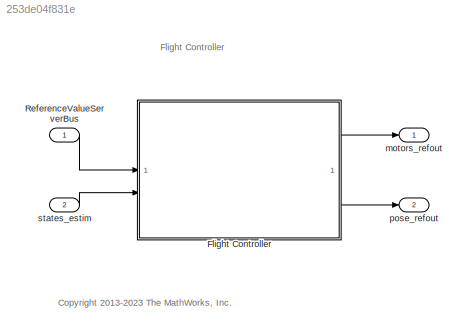
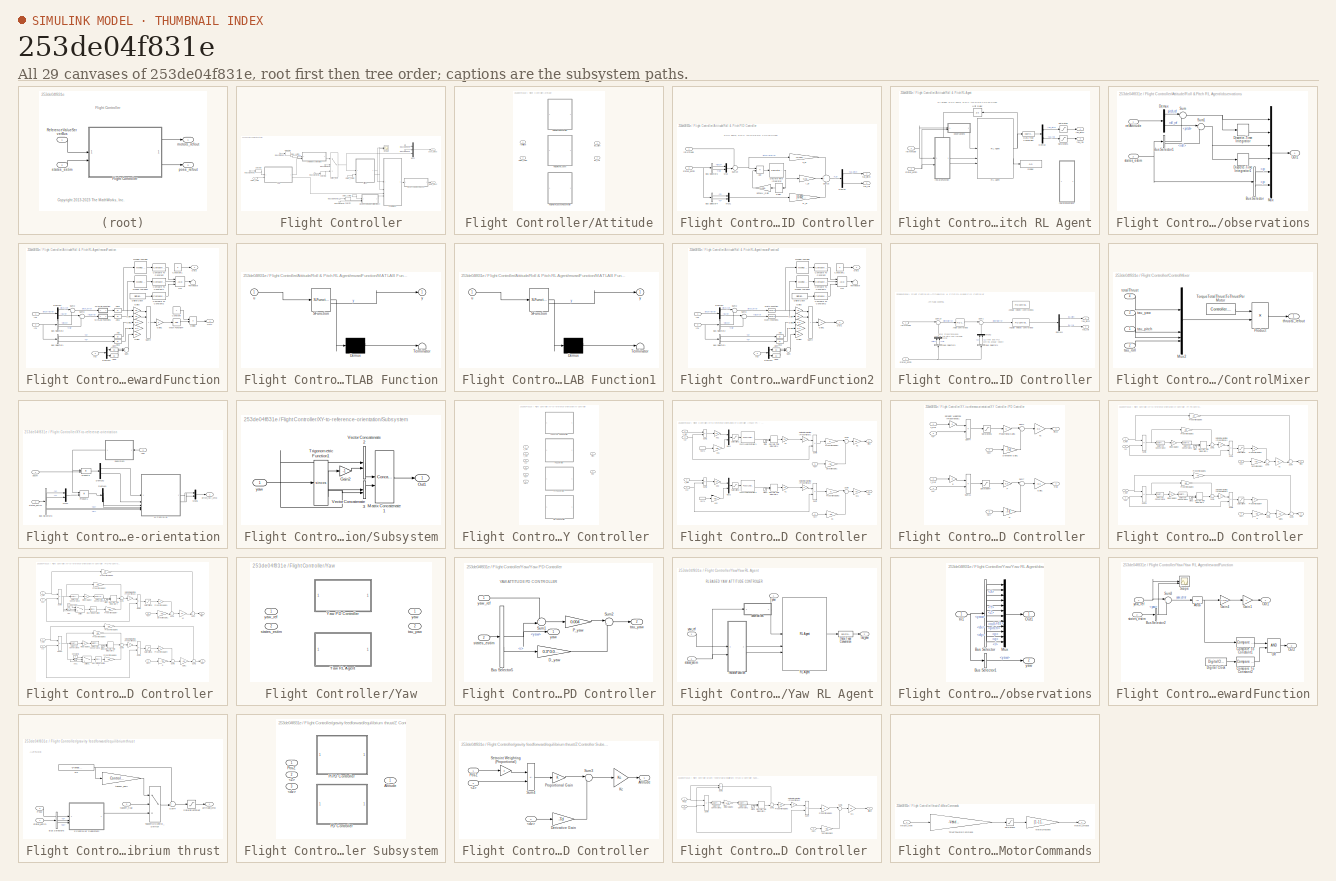
[diagram: thumbnail index - all 29 canvases of the model, root first then tree order]
MODEL slx_253de04f831e
KIND model
CONFIG AbsTol = auto
CONFIG EnableMultiTasking = on
CONFIG FixedStep = Ts
CONFIG MaxStep = auto
CONFIG MinStep = auto
CONFIG RelTol = 1e-3
CONFIG SampleTimeConstraint = Unconstrained
CONFIG SolverName = ode3
CONFIG StartTime = 0
CONFIG StopTime = TFinal
BLOCK [SubSystem] Flight Controller
  TreatAsAtomicUnit = on
BLOCK [SubSystem] Flight Controller/Attitude
  LabelModeActiveChoice = RL
  Variant = on
  VariantControl = Attitude
  VariantControlMode = label
BLOCK [SubSystem] Flight Controller/Attitude/Roll & Pitch PID Controller
  VariantControl = PID
BLOCK [Sum] Flight Controller/Attitude/Roll & Pitch PID Controller/Add
  IconShape = rectangular
  Inputs = +-
BLOCK [BusSelector] Flight Controller/Attitude/Roll & Pitch PID Controller/Bus Selector3
  OutputSignals = pitch,roll
BLOCK [BusSelector] Flight Controller/Attitude/Roll & Pitch PID Controller/Bus Selector4
  OutputSignals = q,p
BLOCK [Gain] Flight Controller/Attitude/Roll & Pitch PID Controller/D_pr
  Gain = [0.002;0.0028]
BLOCK [Delay] Flight Controller/Attitude/Roll & Pitch PID Controller/Delay
  DelayLength = 1
  InitialCondition = 0
  InputPortMap = u0
BLOCK [Demux] Flight Controller/Attitude/Roll & Pitch PID Controller/Demux
  Outputs = 2
BLOCK [DiscreteIntegrator] Flight Controller/Attitude/Roll & Pitch PID Controller/Discrete-Time Integrator
  ICPrevOutput = DiscIntNeverNeededParam
  ICPrevScaledInput = DiscIntNeverNeededParam
  InitialConditionSetting = Auto
  LimitOutput = on
  LowerSaturationLimit = -2
  SampleTime = Ts
  UpperSaturationLimit = 2
BLOCK [Gain] Flight Controller/Attitude/Roll & Pitch PID Controller/I_pr
  Gain = 0.01
BLOCK [Mux] Flight Controller/Attitude/Roll & Pitch PID Controller/Mux
  DisplayOption = bar
  Inputs = 2
BLOCK [Mux] Flight Controller/Attitude/Roll & Pitch PID Controller/Mux1
  DisplayOption = bar
  Inputs = 2
BLOCK [Gain] Flight Controller/Attitude/Roll & Pitch PID Controller/P_pr
  Gain = [0.013;0.01]
BLOCK [Sum] Flight Controller/Attitude/Roll & Pitch PID Controller/Sum16
  AccumDataTypeStr = single
  Inputs = ++-
  OutDataTypeStr = single
  SaturateOnIntegerOverflow = on
BLOCK [Sum] Flight Controller/Attitude/Roll & Pitch PID Controller/Sum19
  Inputs = +-|
BLOCK [Gain] Flight Controller/Attitude/Roll & Pitch PID Controller/antiWU_Gain
  Gain = 0.001
BLOCK [Inport] Flight Controller/Attitude/Roll & Pitch PID Controller/refAttitude
BLOCK [Inport] Flight Controller/Attitude/Roll & Pitch PID Controller/states_estim
  Port = 2
BLOCK [Outport] Flight Controller/Attitude/Roll & Pitch PID Controller/tau_pitch
  VectorParamsAs1DForOutWhenUnconnected = off
BLOCK [Outport] Flight Controller/Attitude/Roll & Pitch PID Controller/tau_roll
  Port = 2
  VectorParamsAs1DForOutWhenUnconnected = off
BLOCK [SubSystem] Flight Controller/Attitude/Roll & Pitch RL Agent
  VariantControl = RL
BLOCK [DataTypeConversion] Flight Controller/Attitude/Roll & Pitch RL Agent/Data Type Conversion
  OutDataTypeStr = single
  RndMeth = Floor
  SaturateOnIntegerOverflow = off
BLOCK [Demux] Flight Controller/Attitude/Roll & Pitch RL Agent/Demux
  Outputs = 2
BLOCK [Display] Flight Controller/Attitude/Roll & Pitch RL Agent/Display
  Decimation = 1
BLOCK [Reference] Flight Controller/Attitude/Roll & Pitch RL Agent/RL Agent  REF=rllib/RL Agent
  SourceBlock = rllib/RL Agent
  SourceType = RL Agent
BLOCK [Saturate] Flight Controller/Attitude/Roll & Pitch RL Agent/Saturation
  LowerLimit = -0.005
  UpperLimit = 0.005
BLOCK [Saturate] Flight Controller/Attitude/Roll & Pitch RL Agent/Saturation1
  LowerLimit = -0.005
  UpperLimit = 0.005
BLOCK [UnitDelay] Flight Controller/Attitude/Roll & Pitch RL Agent/Unit Delay
  HasFrameUpgradeWarning = on
  SampleTime = -1
BLOCK [SubSystem] Flight Controller/Attitude/Roll & Pitch RL Agent/observations
BLOCK [BusSelector] Flight Controller/Attitude/Roll & Pitch RL Agent/observations/Bus Selector
  OutputSignals = q,p
BLOCK [BusSelector] Flight Controller/Attitude/Roll & Pitch RL Agent/observations/Bus Selector1
  OutputSignals = pitch,roll
BLOCK [Demux] Flight Controller/Attitude/Roll & Pitch RL Agent/observations/Demux
  Outputs = 2
BLOCK [DiscreteIntegrator] Flight Controller/Attitude/Roll & Pitch RL Agent/observations/Discrete-Time Integrator
  ICPrevOutput = DiscIntNeverNeededParam
  ICPrevScaledInput = DiscIntNeverNeededParam
  InitialConditionSetting = Auto
  SampleTime = Ts
BLOCK [DiscreteIntegrator] Flight Controller/Attitude/Roll & Pitch RL Agent/observations/Discrete-Time Integrator1
  ICPrevOutput = DiscIntNeverNeededParam
  ICPrevScaledInput = DiscIntNeverNeededParam
  InitialConditionSetting = Auto
  SampleTime = Ts
BLOCK [Mux] Flight Controller/Attitude/Roll & Pitch RL Agent/observations/Mux
  DisplayOption = bar
  Inputs = 6
BLOCK [Outport] Flight Controller/Attitude/Roll & Pitch RL Agent/observations/Out1
BLOCK [Sum] Flight Controller/Attitude/Roll & Pitch RL Agent/observations/Sum
  Inputs = |+-
BLOCK [Sum] Flight Controller/Attitude/Roll & Pitch RL Agent/observations/Sum1
  Inputs = |+-
BLOCK [Inport] Flight Controller/Attitude/Roll & Pitch RL Agent/observations/refAttitude
BLOCK [Inport] Flight Controller/Attitude/Roll & Pitch RL Agent/observations/states_estim
  Port = 2
BLOCK [Inport] Flight Controller/Attitude/Roll & Pitch RL Agent/refAttitude
BLOCK [SubSystem] Flight Controller/Attitude/Roll & Pitch RL Agent/rewardFunction
  PortSchema = {"entries":[{"content":{"sides":[{"content":{"connectorIds":["In1","In2"]},"type":"ConnectorPlacement.EquallySpacedRectSide","uuid":"a67b2643-6d4e-47da-9384-3a1e9a412811"},{"content":{"connectorIds":["Out1","Out2"],"side":"RIGHT"},"type":"ConnectorPlacement.EquallySpacedRectSide","uuid":"5cf99017-b414-4804-a368-110af44f7389"},{"content":{"connectorIds":["In3"],"side":"TOP"},"type":"ConnectorPlacem...<+258ch>
BLOCK [Abs] Flight Controller/Attitude/Roll & Pitch RL Agent/rewardFunction/Abs
  SaturateOnIntegerOverflow = off
BLOCK [Abs] Flight Controller/Attitude/Roll & Pitch RL Agent/rewardFunction/Abs1
  SaturateOnIntegerOverflow = off
BLOCK [Abs] Flight Controller/Attitude/Roll & Pitch RL Agent/rewardFunction/Abs2
  SaturateOnIntegerOverflow = off
BLOCK [Abs] Flight Controller/Attitude/Roll & Pitch RL Agent/rewardFunction/Abs3
  SaturateOnIntegerOverflow = off
BLOCK [Abs] Flight Controller/Attitude/Roll & Pitch RL Agent/rewardFunction/Abs4
  SaturateOnIntegerOverflow = off
BLOCK [Abs] Flight Controller/Attitude/Roll & Pitch RL Agent/rewardFunction/Abs5
  SaturateOnIntegerOverflow = off
BLOCK [BusSelector] Flight Controller/Attitude/Roll & Pitch RL Agent/rewardFunction/Bus Selector1
  OutputSignals = p,q
BLOCK [BusSelector] Flight Controller/Attitude/Roll & Pitch RL Agent/rewardFunction/Bus Selector2
  OutputSignals = pitch,roll
BLOCK [Reference] Flight Controller/Attitude/Roll & Pitch RL Agent/rewardFunction/Compare To Constant  REF=simulink/Logic and Bit
Operations/Compare
To Constant
  SourceBlock = simulink/Logic and Bit\nOperations/Compare\nTo Constant
  SourceType = Compare To Constant
BLOCK [Reference] Flight Controller/Attitude/Roll & Pitch RL Agent/rewardFunction/Compare To Constant1  REF=simulink/Logic and Bit
Operations/Compare
To Constant
  SourceBlock = simulink/Logic and Bit\nOperations/Compare\nTo Constant
  SourceType = Compare To Constant
BLOCK [Reference] Flight Controller/Attitude/Roll & Pitch RL Agent/rewardFunction/Compare To Constant2  REF=simulink/Logic and Bit
Operations/Compare
To Constant
  SourceBlock = simulink/Logic and Bit\nOperations/Compare\nTo Constant
  SourceType = Compare To Constant
BLOCK [Constant] Flight Controller/Attitude/Roll & Pitch RL Agent/rewardFunction/Constant
  SampleTime = Ts
BLOCK [Constant] Flight Controller/Attitude/Roll & Pitch RL Agent/rewardFunction/Constant1
  SampleTime = Ts
  Value = 0
BLOCK [Demux] Flight Controller/Attitude/Roll & Pitch RL Agent/rewardFunction/Demux1
  Outputs = 2
BLOCK [Demux] Flight Controller/Attitude/Roll & Pitch RL Agent/rewardFunction/Demux2
  Outputs = 2
BLOCK [DigitalClock] Flight Controller/Attitude/Roll & Pitch RL Agent/rewardFunction/Digital Clock
  SampleTime = Ts
BLOCK [Product] Flight Controller/Attitude/Roll & Pitch RL Agent/rewardFunction/Divide
  Inputs = */
BLOCK [Gain] Flight Controller/Attitude/Roll & Pitch RL Agent/rewardFunction/Gain1
  OutDataTypeStr = single
BLOCK [Gain] Flight Controller/Attitude/Roll & Pitch RL Agent/rewardFunction/Gain2
  Gain = 0.1
BLOCK [Gain] Flight Controller/Attitude/Roll & Pitch RL Agent/rewardFunction/Gain3
  Gain = 0.5
BLOCK [Gain] Flight Controller/Attitude/Roll & Pitch RL Agent/rewardFunction/Gain4
  Gain = 0.5
BLOCK [Gain] Flight Controller/Attitude/Roll & Pitch RL Agent/rewardFunction/Gain5
  Gain = 0.1
BLOCK [Gain] Flight Controller/Attitude/Roll & Pitch RL Agent/rewardFunction/Gain6
  Gain = 0.1
BLOCK [Inport] Flight Controller/Attitude/Roll & Pitch RL Agent/rewardFunction/In1
  Port = 2
BLOCK [Inport] Flight Controller/Attitude/Roll & Pitch RL Agent/rewardFunction/In2
BLOCK [Inport] Flight Controller/Attitude/Roll & Pitch RL Agent/rewardFunction/In3
  Port = 3
BLOCK [SubSystem] Flight Controller/Attitude/Roll & Pitch RL Agent/rewardFunction/MATLAB Function
  Commented = through
  ErrorFcn = Stateflow.Translate.translate
  PermitHierarchicalResolution = ExplicitOnly
  SFBlockType = MATLAB Function
  TreatAsAtomicUnit = on
BLOCK [Demux] Flight Controller/Attitude/Roll & Pitch RL Agent/rewardFunction/MATLAB Function/ Demux 
  Outputs = 1
BLOCK [S-Function] Flight Controller/Attitude/Roll & Pitch RL Agent/rewardFunction/MATLAB Function/ SFunction 
  EnableBusSupport = on
  FunctionName = sf_sfun
  PortCounts = [1 2]
  SFcnIsStateOwnerBlock = off
  SFunctionDeploymentMode = off
  Tag = Stateflow S-Function 3
BLOCK [Terminator] Flight Controller/Attitude/Roll & Pitch RL Agent/rewardFunction/MATLAB Function/ Terminator 
BLOCK [Inport] Flight Controller/Attitude/Roll & Pitch RL Agent/rewardFunction/MATLAB Function/u
BLOCK [Outport] Flight Controller/Attitude/Roll & Pitch RL Agent/rewardFunction/MATLAB Function/y
BLOCK [SubSystem] Flight Controller/Attitude/Roll & Pitch RL Agent/rewardFunction/MATLAB Function1
  Commented = through
  ErrorFcn = Stateflow.Translate.translate
  PermitHierarchicalResolution = ExplicitOnly
  SFBlockType = MATLAB Function
  TreatAsAtomicUnit = on
BLOCK [Demux] Flight Controller/Attitude/Roll & Pitch RL Agent/rewardFunction/MATLAB Function1/ Demux 
  Outputs = 1
BLOCK [S-Function] Flight Controller/Attitude/Roll & Pitch RL Agent/rewardFunction/MATLAB Function1/ SFunction 
  EnableBusSupport = on
  FunctionName = sf_sfun
  PortCounts = [1 2]
  SFcnIsStateOwnerBlock = off
  SFunctionDeploymentMode = off
  Tag = Stateflow S-Function 4
BLOCK [Terminator] Flight Controller/Attitude/Roll & Pitch RL Agent/rewardFunction/MATLAB Function1/ Terminator 
BLOCK [Inport] Flight Controller/Attitude/Roll & Pitch RL Agent/rewardFunction/MATLAB Function1/u
BLOCK [Outport] Flight Controller/Attitude/Roll & Pitch RL Agent/rewardFunction/MATLAB Function1/y
BLOCK [Math] Flight Controller/Attitude/Roll & Pitch RL Agent/rewardFunction/Math Function4
BLOCK [Reference] Flight Controller/Attitude/Roll & Pitch RL Agent/rewardFunction/Moving Average  REF=dspstat3/Moving
Average
  Commented = through
  SourceBlock = dspstat3/Moving\nAverage
  SourceType = dsp.simulink.MovingAverage
BLOCK [Reference] Flight Controller/Attitude/Roll & Pitch RL Agent/rewardFunction/Moving Average1  REF=dspstat3/Moving
Average
  Commented = through
  SourceBlock = dspstat3/Moving\nAverage
  SourceType = dsp.simulink.MovingAverage
BLOCK [Logic] Flight Controller/Attitude/Roll & Pitch RL Agent/rewardFunction/OR
  AllPortsSameDT = off
  Inputs = 3
  OutDataTypeStr = boolean
BLOCK [Outport] Flight Controller/Attitude/Roll & Pitch RL Agent/rewardFunction/Out1
BLOCK [Outport] Flight Controller/Attitude/Roll & Pitch RL Agent/rewardFunction/Out2
  Port = 2
BLOCK [Sum] Flight Controller/Attitude/Roll & Pitch RL Agent/rewardFunction/Sum
  Inputs = |++
BLOCK [Sum] Flight Controller/Attitude/Roll & Pitch RL Agent/rewardFunction/Sum2
  Inputs = |+-
BLOCK [Sum] Flight Controller/Attitude/Roll & Pitch RL Agent/rewardFunction/Sum3
  Inputs = |+-
BLOCK [Sum] Flight Controller/Attitude/Roll & Pitch RL Agent/rewardFunction/Sum4
  IconShape = rectangular
  Inputs = +++++
BLOCK [Terminator] Flight Controller/Attitude/Roll & Pitch RL Agent/rewardFunction/Terminator
BLOCK [SubSystem] Flight Controller/Attitude/Roll & Pitch RL Agent/rewardFunction2
  Commented = on
  PortSchema = {"entries":[{"content":{"sides":[{"content":{"connectorIds":["In1","In2"]},"type":"ConnectorPlacement.EquallySpacedRectSide","uuid":"a67b2643-6d4e-47da-9384-3a1e9a412811"},{"content":{"connectorIds":["Out1","Out2"],"side":"RIGHT"},"type":"ConnectorPlacement.EquallySpacedRectSide","uuid":"5cf99017-b414-4804-a368-110af44f7389"},{"content":{"connectorIds":["In3"],"side":"TOP"},"type":"ConnectorPlacem...<+258ch>
BLOCK [Abs] Flight Controller/Attitude/Roll & Pitch RL Agent/rewardFunction2/Abs
  SaturateOnIntegerOverflow = off
BLOCK [Abs] Flight Controller/Attitude/Roll & Pitch RL Agent/rewardFunction2/Abs3
  SaturateOnIntegerOverflow = off
BLOCK [Abs] Flight Controller/Attitude/Roll & Pitch RL Agent/rewardFunction2/Abs4
  SaturateOnIntegerOverflow = off
BLOCK [Abs] Flight Controller/Attitude/Roll & Pitch RL Agent/rewardFunction2/Abs5
  SaturateOnIntegerOverflow = off
BLOCK [BusSelector] Flight Controller/Attitude/Roll & Pitch RL Agent/rewardFunction2/Bus Selector1
  OutputSignals = p,q
BLOCK [BusSelector] Flight Controller/Attitude/Roll & Pitch RL Agent/rewardFunction2/Bus Selector2
  OutputSignals = pitch,roll
BLOCK [Reference] Flight Controller/Attitude/Roll & Pitch RL Agent/rewardFunction2/Compare To Constant  REF=simulink/Logic and Bit
Operations/Compare
To Constant
  SourceBlock = simulink/Logic and Bit\nOperations/Compare\nTo Constant
  SourceType = Compare To Constant
BLOCK [Reference] Flight Controller/Attitude/Roll & Pitch RL Agent/rewardFunction2/Compare To Constant1  REF=simulink/Logic and Bit
Operations/Compare
To Constant
  SourceBlock = simulink/Logic and Bit\nOperations/Compare\nTo Constant
  SourceType = Compare To Constant
BLOCK [Reference] Flight Controller/Attitude/Roll & Pitch RL Agent/rewardFunction2/Compare To Constant2  REF=simulink/Logic and Bit
Operations/Compare
To Constant
  SourceBlock = simulink/Logic and Bit\nOperations/Compare\nTo Constant
  SourceType = Compare To Constant
BLOCK [Constant] Flight Controller/Attitude/Roll & Pitch RL Agent/rewardFunction2/Constant1
  SampleTime = Ts
  Value = 0
BLOCK [Demux] Flight Controller/Attitude/Roll & Pitch RL Agent/rewardFunction2/Demux1
  Outputs = 2
BLOCK [Demux] Flight Controller/Attitude/Roll & Pitch RL Agent/rewardFunction2/Demux2
  Outputs = 2
BLOCK [DigitalClock] Flight Controller/Attitude/Roll & Pitch RL Agent/rewardFunction2/Digital Clock
  SampleTime = Ts
BLOCK [Gain] Flight Controller/Attitude/Roll & Pitch RL Agent/rewardFunction2/Gain1
  Gain = -1
  OutDataTypeStr = single
BLOCK [Gain] Flight Controller/Attitude/Roll & Pitch RL Agent/rewardFunction2/Gain2
  Gain = 0.1
BLOCK [Gain] Flight Controller/Attitude/Roll & Pitch RL Agent/rewardFunction2/Gain3
  Gain = 0.5
BLOCK [Gain] Flight Controller/Attitude/Roll & Pitch RL Agent/rewardFunction2/Gain4
  Gain = 0.5
BLOCK [Gain] Flight Controller/Attitude/Roll & Pitch RL Agent/rewardFunction2/Gain5
  Gain = 0.1
BLOCK [Gain] Flight Controller/Attitude/Roll & Pitch RL Agent/rewardFunction2/Gain6
  Gain = 0.1
BLOCK [Inport] Flight Controller/Attitude/Roll & Pitch RL Agent/rewardFunction2/In1
  Port = 2
BLOCK [Inport] Flight Controller/Attitude/Roll & Pitch RL Agent/rewardFunction2/In2
BLOCK [Inport] Flight Controller/Attitude/Roll & Pitch RL Agent/rewardFunction2/In3
  Port = 3
BLOCK [Math] Flight Controller/Attitude/Roll & Pitch RL Agent/rewardFunction2/Math Function
  Operator = square
BLOCK [Math] Flight Controller/Attitude/Roll & Pitch RL Agent/rewardFunction2/Math Function1
  Operator = square
BLOCK [Reference] Flight Controller/Attitude/Roll & Pitch RL Agent/rewardFunction2/Moving Average  REF=dspstat3/Moving
Average
  Commented = through
  SourceBlock = dspstat3/Moving\nAverage
  SourceType = dsp.simulink.MovingAverage
BLOCK [Reference] Flight Controller/Attitude/Roll & Pitch RL Agent/rewardFunction2/Moving Average1  REF=dspstat3/Moving
Average
  Commented = through
  SourceBlock = dspstat3/Moving\nAverage
  SourceType = dsp.simulink.MovingAverage
BLOCK [Logic] Flight Controller/Attitude/Roll & Pitch RL Agent/rewardFunction2/OR
  AllPortsSameDT = off
  Inputs = 3
  OutDataTypeStr = boolean
BLOCK [Outport] Flight Controller/Attitude/Roll & Pitch RL Agent/rewardFunction2/Out1
BLOCK [Outport] Flight Controller/Attitude/Roll & Pitch RL Agent/rewardFunction2/Out2
  Port = 2
BLOCK [Sum] Flight Controller/Attitude/Roll & Pitch RL Agent/rewardFunction2/Sum
  Inputs = |++
BLOCK [Sum] Flight Controller/Attitude/Roll & Pitch RL Agent/rewardFunction2/Sum2
  Inputs = |+-
BLOCK [Sum] Flight Controller/Attitude/Roll & Pitch RL Agent/rewardFunction2/Sum3
  Inputs = |+-
BLOCK [Sum] Flight Controller/Attitude/Roll & Pitch RL Agent/rewardFunction2/Sum4
  IconShape = rectangular
  Inputs = +++++
BLOCK [Terminator] Flight Controller/Attitude/Roll & Pitch RL Agent/rewardFunction2/Terminator
BLOCK [Inport] Flight Controller/Attitude/Roll & Pitch RL Agent/states_estim
  Port = 2
BLOCK [Outport] Flight Controller/Attitude/Roll & Pitch RL Agent/tau_pitch
  VectorParamsAs1DForOutWhenUnconnected = off
BLOCK [Outport] Flight Controller/Attitude/Roll & Pitch RL Agent/tau_roll
  Port = 2
  VectorParamsAs1DForOutWhenUnconnected = off
BLOCK [SubSystem] Flight Controller/Attitude/Roll & Pitch RL Based PID Controller
  VariantControl = RL Based PID
BLOCK [Reference] Flight Controller/Attitude/Roll & Pitch RL Based PID Controller/Angle control loop  REF=slpidlib/PID Controller
  SourceBlock = slpidlib/PID Controller
  SourceType = PID 1dof
BLOCK [Reference] Flight Controller/Attitude/Roll & Pitch RL Based PID Controller/Angular velocity control loop  REF=slpidlib/PID Controller
  SourceBlock = slpidlib/PID Controller
  SourceType = PID 1dof
BLOCK [Reference] Flight Controller/Attitude/Roll & Pitch RL Based PID Controller/Angular velocity control loop1  REF=slpidlib/PID Controller
  Commented = on
  SourceBlock = slpidlib/PID Controller
  SourceType = PID 1dof
BLOCK [BusSelector] Flight Controller/Attitude/Roll & Pitch RL Based PID Controller/Bus Selector1
  OutputSignals = q,p
BLOCK [BusSelector] Flight Controller/Attitude/Roll & Pitch RL Based PID Controller/Bus Selector3
  OutputSignals = pitch,roll
BLOCK [Demux] Flight Controller/Attitude/Roll & Pitch RL Based PID Controller/Demux1
  Outputs = 2
BLOCK [Mux] Flight Controller/Attitude/Roll & Pitch RL Based PID Controller/Mux
  DisplayOption = bar
  Inputs = 2
BLOCK [Mux] Flight Controller/Attitude/Roll & Pitch RL Based PID Controller/Mux2
  DisplayOption = bar
  Inputs = 2
BLOCK [Sum] Flight Controller/Attitude/Roll & Pitch RL Based PID Controller/Sum1
  Inputs = |+-
BLOCK [Sum] Flight Controller/Attitude/Roll & Pitch RL Based PID Controller/Sum19
  Inputs = |+-
BLOCK [Inport] Flight Controller/Attitude/Roll & Pitch RL Based PID Controller/refAttitude
BLOCK [Inport] Flight Controller/Attitude/Roll & Pitch RL Based PID Controller/states_estim
  Port = 2
BLOCK [Outport] Flight Controller/Attitude/Roll & Pitch RL Based PID Controller/tau_pitch
  VectorParamsAs1DForOutWhenUnconnected = off
BLOCK [Outport] Flight Controller/Attitude/Roll & Pitch RL Based PID Controller/tau_roll
  Port = 2
  VectorParamsAs1DForOutWhenUnconnected = off
BLOCK [Inport] Flight Controller/Attitude/refAttitude
BLOCK [Inport] Flight Controller/Attitude/states_estim
  Port = 2
BLOCK [Outport] Flight Controller/Attitude/tau_pitch
BLOCK [Outport] Flight Controller/Attitude/tau_roll
  Port = 2
BLOCK [SubSystem] Flight Controller/ControlMixer
BLOCK [Mux] Flight Controller/ControlMixer/Mux2
  DisplayOption = bar
BLOCK [Product] Flight Controller/ControlMixer/Product
  Multiplication = Matrix(*)
  RndMeth = Zero
BLOCK [Constant] Flight Controller/ControlMixer/TorqueTotalThrustToThrustPerMotor
  NameLocation = top
  OutDataTypeStr = single
  Value = Controller.Q2Ts
BLOCK [Inport] Flight Controller/ControlMixer/tau_pitch
BLOCK [Inport] Flight Controller/ControlMixer/tau_roll
  Port = 2
BLOCK [Inport] Flight Controller/ControlMixer/tau_yaw
  Port = 3
BLOCK [Outport] Flight Controller/ControlMixer/thrusts_refout
  VectorParamsAs1DForOutWhenUnconnected = off
BLOCK [Inport] Flight Controller/ControlMixer/totalThrust
  Port = 4
BLOCK [Inport] Flight Controller/In Bus Element
BLOCK [Inport] Flight Controller/In Bus Element1
BLOCK [Inport] Flight Controller/In Bus Element2
BLOCK [Inport] Flight Controller/In Bus Element3
BLOCK [Inport] Flight Controller/In Bus Element4
BLOCK [Inport] Flight Controller/In Bus Element5
BLOCK [Inport] Flight Controller/In Bus Element6
BLOCK [Inport] Flight Controller/In Bus Element7
BLOCK [Mux] Flight Controller/Mux2
  DisplayOption = bar
  Inputs = 3
BLOCK [Scope] Flight Controller/Scope
  Floating = off
  NumInputPorts = 2
  ScopeSpecificationString = Simulink.scopes.TimeScopeBlockCfg('CurrentConfiguration', extmgr.ConfigurationSet(extmgr.Configuration('Core','General UI',true),extmgr.Configuration('Core','Source UI',true),extmgr.Configuration('Sources','WiredSimulink',true,'DataLoggingVariableName','ScopeData1'),extmgr.Configuration('Visuals','Time Domain',true,'SerializedDisplays',{struct('MinYLimReal','-0.00013','MaxYLimReal','0.00014','YLab...<+1456ch>
BLOCK [Selector] Flight Controller/Selector
  IndexOptions = Index vector (dialog)
  Indices = 3
  InputPortWidth = 3
  OutputSizes = 1
BLOCK [Selector] Flight Controller/Selector1
  IndexOptions = Index vector (dialog)
  Indices = [1 2]
  InputPortWidth = 3
  OutputSizes = 1
BLOCK [Selector] Flight Controller/Selector2
  IndexOptions = Index vector (dialog)
  Indices = [2 3]
  InputPortWidth = 3
  OutputSizes = 1
BLOCK [Selector] Flight Controller/Selector3
  IndexOptions = Index vector (dialog)
  Indices = 1
  InputPortWidth = 3
  OutputSizes = 1
BLOCK [Switch] Flight Controller/Switch_refAtt
  Criteria = u2 > Threshold
  InputSameDT = off
  SaturateOnIntegerOverflow = off
BLOCK [SubSystem] Flight Controller/XY-to-reference-orientation
  NameLocation = top
BLOCK [BusSelector] Flight Controller/XY-to-reference-orientation/Bus Selector3
  OutputSignals = X,Y,dx,dy
BLOCK [Demux] Flight Controller/XY-to-reference-orientation/Demux1
  Outputs = 2
BLOCK [Demux] Flight Controller/XY-to-reference-orientation/Demux2
  Outputs = 2
BLOCK [Mux] Flight Controller/XY-to-reference-orientation/Mux2
  DisplayOption = bar
  Inputs = 2
BLOCK [Mux] Flight Controller/XY-to-reference-orientation/Mux6
  DisplayOption = bar
  Inputs = 2
BLOCK [Product] Flight Controller/XY-to-reference-orientation/Product1
  Multiplication = Matrix(*)
  OutDataTypeStr = single
  RndMeth = Zero
BLOCK [Product] Flight Controller/XY-to-reference-orientation/Product3
  Multiplication = Matrix(*)
  OutDataTypeStr = single
  RndMeth = Zero
BLOCK [SubSystem] Flight Controller/XY-to-reference-orientation/Subsystem
  NameLocation = top
BLOCK [Gain] Flight Controller/XY-to-reference-orientation/Subsystem/Gain2
  Gain = -1
BLOCK [Concatenate] Flight Controller/XY-to-reference-orientation/Subsystem/Matrix Concatenate1
  ConcatenateDimension = 2
  Mode = Multidimensional array
BLOCK [Outport] Flight Controller/XY-to-reference-orientation/Subsystem/Out1
  VectorParamsAs1DForOutWhenUnconnected = off
BLOCK [Trigonometry] Flight Controller/XY-to-reference-orientation/Subsystem/Trigonometric Function1
  Operator = sincos
BLOCK [Concatenate] Flight Controller/XY-to-reference-orientation/Subsystem/Vector Concatenate2
BLOCK [Concatenate] Flight Controller/XY-to-reference-orientation/Subsystem/Vector Concatenate3
BLOCK [Inport] Flight Controller/XY-to-reference-orientation/Subsystem/yaw
BLOCK [SubSystem] Flight Controller/XY-to-reference-orientation/XY Controller 
  LabelModeActiveChoice = PD
  Variant = on
  VariantControl = Variant2
  VariantControlMode = label
BLOCK [Outport] Flight Controller/XY-to-reference-orientation/XY Controller / Pitch
  VectorParamsAs1DForOutWhenUnconnected = off
BLOCK [Outport] Flight Controller/XY-to-reference-orientation/XY Controller / Roll
  Port = 2
  VectorParamsAs1DForOutWhenUnconnected = off
BLOCK [SubSystem] Flight Controller/XY-to-reference-orientation/XY Controller /(Fuzzy PI) - PD Controller 
  VariantControl = Fuzzy PI - PD
BLOCK [Inport] Flight Controller/XY-to-reference-orientation/XY Controller /(Fuzzy PI) - PD Controller /<X>
  Port = 3
BLOCK [Inport] Flight Controller/XY-to-reference-orientation/XY Controller /(Fuzzy PI) - PD Controller /<Y>
  Port = 4
BLOCK [Inport] Flight Controller/XY-to-reference-orientation/XY Controller /(Fuzzy PI) - PD Controller /<dx>
  Port = 5
BLOCK [InportShadow] Flight Controller/XY-to-reference-orientation/XY Controller /(Fuzzy PI) - PD Controller /<dx>1
  Port = 5
BLOCK [Inport] Flight Controller/XY-to-reference-orientation/XY Controller /(Fuzzy PI) - PD Controller /<dy>
  Port = 6
BLOCK [InportShadow] Flight Controller/XY-to-reference-orientation/XY Controller /(Fuzzy PI) - PD Controller /<dy>1
  Port = 6
BLOCK [Gain] Flight Controller/XY-to-reference-orientation/XY Controller /(Fuzzy PI) - PD Controller /D 1
  Gain = -Td
BLOCK [Gain] Flight Controller/XY-to-reference-orientation/XY Controller /(Fuzzy PI) - PD Controller /Derivative Gain1
  DisableCoverage = on
  Gain = -Td
BLOCK [DiscreteIntegrator] Flight Controller/XY-to-reference-orientation/XY Controller /(Fuzzy PI) - PD Controller /Discrete-Time Integrator1
  ExternalReset = falling
  ICPrevOutput = DiscIntNeverNeededParam
  ICPrevScaledInput = DiscIntNeverNeededParam
  InitialConditionSetting = Auto
  SampleTime = Ts
BLOCK [DiscreteIntegrator] Flight Controller/XY-to-reference-orientation/XY Controller /(Fuzzy PI) - PD Controller /Discrete-Time Integrator4
  ExternalReset = falling
  ICPrevOutput = DiscIntNeverNeededParam
  ICPrevScaledInput = DiscIntNeverNeededParam
  InitialConditionSetting = Auto
  SampleTime = Ts
BLOCK [Reference] Flight Controller/XY-to-reference-orientation/XY Controller /(Fuzzy PI) - PD Controller /Fuzzy Logic Controller1  REF=fuzblock/Fuzzy Logic   (lib defined in mdl_858b3b3e7478)
Controller
  SourceBlock = fuzblock/Fuzzy Logic \nController
  SourceType = Fuzzy Inference System
BLOCK [Reference] Flight Controller/XY-to-reference-orientation/XY Controller /(Fuzzy PI) - PD Controller /Fuzzy Logic Controller2  REF=fuzblock/Fuzzy Logic   (lib defined in mdl_858b3b3e7478)
Controller
  SourceBlock = fuzblock/Fuzzy Logic \nController
  SourceType = Fuzzy Inference System
BLOCK [Gain] Flight Controller/XY-to-reference-orientation/XY Controller /(Fuzzy PI) - PD Controller /K1
  Gain = K0
BLOCK [Gain] Flight Controller/XY-to-reference-orientation/XY Controller /(Fuzzy PI) - PD Controller /K2
  Gain = K0
BLOCK [Gain] Flight Controller/XY-to-reference-orientation/XY Controller /(Fuzzy PI) - PD Controller /Kc
  Gain = Kc
BLOCK [Gain] Flight Controller/XY-to-reference-orientation/XY Controller /(Fuzzy PI) - PD Controller /Kc1
  Gain = -Kc
BLOCK [Mux] Flight Controller/XY-to-reference-orientation/XY Controller /(Fuzzy PI) - PD Controller /Mux1
  DisplayOption = bar
  Inputs = 2
BLOCK [Mux] Flight Controller/XY-to-reference-orientation/XY Controller /(Fuzzy PI) - PD Controller /Mux2
  DisplayOption = bar
  Inputs = 2
BLOCK [Outport] Flight Controller/XY-to-reference-orientation/XY Controller /(Fuzzy PI) - PD Controller /Pitch
  VectorParamsAs1DForOutWhenUnconnected = off
BLOCK [Gain] Flight Controller/XY-to-reference-orientation/XY Controller /(Fuzzy PI) - PD Controller /Proportional Gain1
BLOCK [Gain] Flight Controller/XY-to-reference-orientation/XY Controller /(Fuzzy PI) - PD Controller /Proportional Gain2
BLOCK [Outport] Flight Controller/XY-to-reference-orientation/XY Controller /(Fuzzy PI) - PD Controller /Roll
  Port = 2
  VectorParamsAs1DForOutWhenUnconnected = off
BLOCK [Saturate] Flight Controller/XY-to-reference-orientation/XY Controller /(Fuzzy PI) - PD Controller /Saturation1
  LowerLimit = -1
  UpperLimit = 1
BLOCK [Saturate] Flight Controller/XY-to-reference-orientation/XY Controller /(Fuzzy PI) - PD Controller /Saturation2
  LowerLimit = -1
  UpperLimit = 1
BLOCK [Gain] Flight Controller/XY-to-reference-orientation/XY Controller /(Fuzzy PI) - PD Controller /Setpoint Weighting (Proportional)1
  DisableCoverage = on
  Gain = b
BLOCK [Gain] Flight Controller/XY-to-reference-orientation/XY Controller /(Fuzzy PI) - PD Controller /Setpoint Weighting (Proportional)2
  DisableCoverage = on
  Gain = b
BLOCK [Step] Flight Controller/XY-to-reference-orientation/XY Controller /(Fuzzy PI) - PD Controller /Step
  After = 0
  Before = 1
  SampleTime = Ts
  Time = 49
BLOCK [Step] Flight Controller/XY-to-reference-orientation/XY Controller /(Fuzzy PI) - PD Controller /Step1
  After = 0
  Before = 1
  SampleTime = Ts
  Time = 49
BLOCK [Sum] Flight Controller/XY-to-reference-orientation/XY Controller /(Fuzzy PI) - PD Controller /Sum1
  DisableCoverage = on
  IconShape = rectangular
  Inputs = +-
BLOCK [Sum] Flight Controller/XY-to-reference-orientation/XY Controller /(Fuzzy PI) - PD Controller /Sum2
  DisableCoverage = on
  IconShape = rectangular
  Inputs = +-
BLOCK [Sum] Flight Controller/XY-to-reference-orientation/XY Controller /(Fuzzy PI) - PD Controller /Sum3
  Inputs = |++
BLOCK [Sum] Flight Controller/XY-to-reference-orientation/XY Controller /(Fuzzy PI) - PD Controller /Sum5
  DisableCoverage = on
  IconShape = rectangular
  Inputs = +-
BLOCK [Sum] Flight Controller/XY-to-reference-orientation/XY Controller /(Fuzzy PI) - PD Controller /Sum6
  Inputs = |++
BLOCK [Sum] Flight Controller/XY-to-reference-orientation/XY Controller /(Fuzzy PI) - PD Controller /Sum7
  DisableCoverage = on
  IconShape = rectangular
  Inputs = +-
BLOCK [Inport] Flight Controller/XY-to-reference-orientation/XY Controller /(Fuzzy PI) - PD Controller /X_Ref
BLOCK [Inport] Flight Controller/XY-to-reference-orientation/XY Controller /(Fuzzy PI) - PD Controller /Y_Ref
  Port = 2
BLOCK [Gain] Flight Controller/XY-to-reference-orientation/XY Controller /(Fuzzy PI) - PD Controller /kd1
  Gain = -Kd
BLOCK [Gain] Flight Controller/XY-to-reference-orientation/XY Controller /(Fuzzy PI) - PD Controller /kd2
  Gain = -Kd
BLOCK [Gain] Flight Controller/XY-to-reference-orientation/XY Controller /(Fuzzy PI) - PD Controller /ke1
  Gain = Ke
BLOCK [Gain] Flight Controller/XY-to-reference-orientation/XY Controller /(Fuzzy PI) - PD Controller /ke2
  Gain = Ke
BLOCK [Inport] Flight Controller/XY-to-reference-orientation/XY Controller /<X> 
  Port = 3
BLOCK [Inport] Flight Controller/XY-to-reference-orientation/XY Controller /<Y> 
  Port = 4
BLOCK [Inport] Flight Controller/XY-to-reference-orientation/XY Controller /<dx> 
  Port = 5
BLOCK [Inport] Flight Controller/XY-to-reference-orientation/XY Controller /<dy> 
  Port = 6
BLOCK [SubSystem] Flight Controller/XY-to-reference-orientation/XY Controller /PD Controller 
  VariantControl = PD
BLOCK [Inport] Flight Controller/XY-to-reference-orientation/XY Controller /PD Controller /<X>
  Port = 3
BLOCK [Inport] Flight Controller/XY-to-reference-orientation/XY Controller /PD Controller /<Y>
  Port = 4
BLOCK [Inport] Flight Controller/XY-to-reference-orientation/XY Controller /PD Controller /<dx>
  Port = 5
BLOCK [Inport] Flight Controller/XY-to-reference-orientation/XY Controller /PD Controller /<dy>
  Port = 6
BLOCK [Gain] Flight Controller/XY-to-reference-orientation/XY Controller /PD Controller /D
  Gain = -Td
BLOCK [Gain] Flight Controller/XY-to-reference-orientation/XY Controller /PD Controller /Derivative Gain1
  DisableCoverage = on
  Gain = -Td
BLOCK [Gain] Flight Controller/XY-to-reference-orientation/XY Controller /PD Controller /Gain1
  Gain = -Kc
BLOCK [Gain] Flight Controller/XY-to-reference-orientation/XY Controller /PD Controller /Kc
  Gain = Kc
BLOCK [Gain] Flight Controller/XY-to-reference-orientation/XY Controller /PD Controller /P
  Gain = 0.5
BLOCK [Outport] Flight Controller/XY-to-reference-orientation/XY Controller /PD Controller /Pitch
  OutDataTypeStr = single
  VectorParamsAs1DForOutWhenUnconnected = off
BLOCK [Gain] Flight Controller/XY-to-reference-orientation/XY Controller /PD Controller /Proportional Gain1
BLOCK [Outport] Flight Controller/XY-to-reference-orientation/XY Controller /PD Controller /Roll
  OutDataTypeStr = single
  Port = 2
  VectorParamsAs1DForOutWhenUnconnected = off
BLOCK [Saturate] Flight Controller/XY-to-reference-orientation/XY Controller /PD Controller /Saturation5
  LowerLimit = -3
  OutDataTypeStr = single
  UpperLimit = 3
BLOCK [Saturate] Flight Controller/XY-to-reference-orientation/XY Controller /PD Controller /Saturation7
  LowerLimit = -3
  OutDataTypeStr = single
  UpperLimit = 3
BLOCK [Gain] Flight Controller/XY-to-reference-orientation/XY Controller /PD Controller /Setpoint Weighting (Proportional)1
  DisableCoverage = on
  Gain = b
BLOCK [Sum] Flight Controller/XY-to-reference-orientation/XY Controller /PD Controller /Sum1
  Inputs = |++
BLOCK [Sum] Flight Controller/XY-to-reference-orientation/XY Controller /PD Controller /Sum11
  DisableCoverage = on
  IconShape = rectangular
  Inputs = +-
BLOCK [Sum] Flight Controller/XY-to-reference-orientation/XY Controller /PD Controller /Sum4
  DisableCoverage = on
  IconShape = rectangular
  Inputs = +-
BLOCK [Sum] Flight Controller/XY-to-reference-orientation/XY Controller /PD Controller /Sum7
  Inputs = |++
BLOCK [Inport] Flight Controller/XY-to-reference-orientation/XY Controller /PD Controller /X_Ref
BLOCK [Inport] Flight Controller/XY-to-reference-orientation/XY Controller /PD Controller /Y_Ref
  Port = 2
BLOCK [Gain] Flight Controller/XY-to-reference-orientation/XY Controller /PD Controller /b
  Gain = b
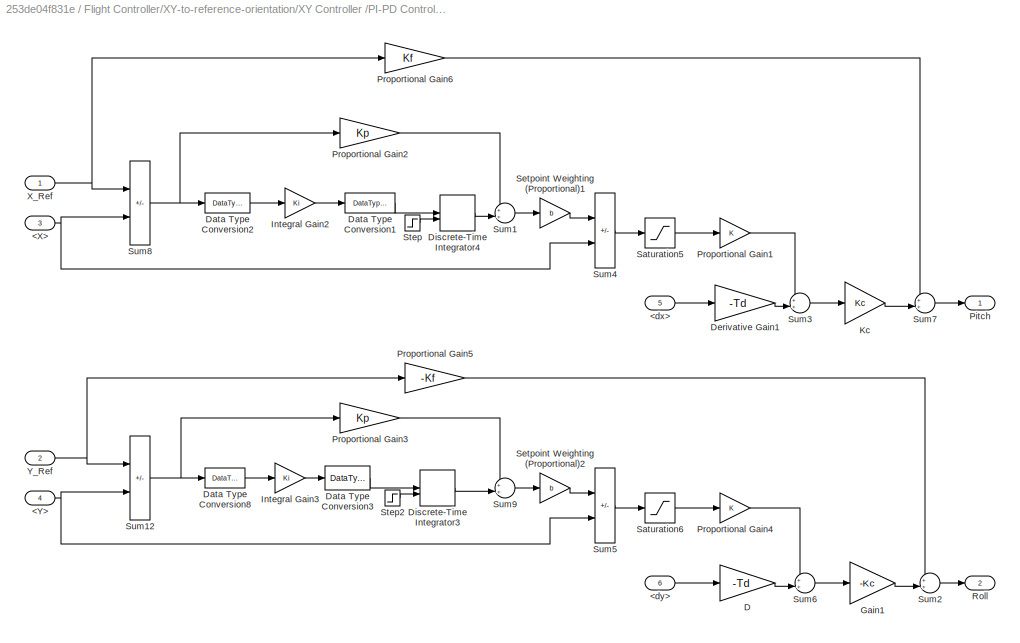
BLOCK [SubSystem] Flight Controller/XY-to-reference-orientation/XY Controller /PI-PD Controller 
  VariantControl = PI-PD
BLOCK [Inport] Flight Controller/XY-to-reference-orientation/XY Controller /PI-PD Controller /<X>
  Port = 3
BLOCK [Inport] Flight Controller/XY-to-reference-orientation/XY Controller /PI-PD Controller /<Y>
  Port = 4
BLOCK [Inport] Flight Controller/XY-to-reference-orientation/XY Controller /PI-PD Controller /<dx>
  Port = 5
BLOCK [Inport] Flight Controller/XY-to-reference-orientation/XY Controller /PI-PD Controller /<dy>
  Port = 6
BLOCK [Gain] Flight Controller/XY-to-reference-orientation/XY Controller /PI-PD Controller /D
  Gain = -Td
BLOCK [DataTypeConversion] Flight Controller/XY-to-reference-orientation/XY Controller /PI-PD Controller /Data Type Conversion1
  OutDataTypeStr = double
  RndMeth = Floor
  SaturateOnIntegerOverflow = off
BLOCK [DataTypeConversion] Flight Controller/XY-to-reference-orientation/XY Controller /PI-PD Controller /Data Type Conversion2
  OutDataTypeStr = single
  RndMeth = Floor
  SaturateOnIntegerOverflow = off
BLOCK [DataTypeConversion] Flight Controller/XY-to-reference-orientation/XY Controller /PI-PD Controller /Data Type Conversion3
  OutDataTypeStr = double
  RndMeth = Floor
  SaturateOnIntegerOverflow = off
BLOCK [DataTypeConversion] Flight Controller/XY-to-reference-orientation/XY Controller /PI-PD Controller /Data Type Conversion8
  OutDataTypeStr = single
  RndMeth = Floor
  SaturateOnIntegerOverflow = off
BLOCK [Gain] Flight Controller/XY-to-reference-orientation/XY Controller /PI-PD Controller /Derivative Gain1
  DisableCoverage = on
  Gain = -Td
BLOCK [DiscreteIntegrator] Flight Controller/XY-to-reference-orientation/XY Controller /PI-PD Controller /Discrete-Time Integrator3
  ExternalReset = falling
  ICPrevOutput = DiscIntNeverNeededParam
  ICPrevScaledInput = DiscIntNeverNeededParam
  InitialConditionSetting = Auto
  SampleTime = Ts
BLOCK [DiscreteIntegrator] Flight Controller/XY-to-reference-orientation/XY Controller /PI-PD Controller /Discrete-Time Integrator4
  ExternalReset = falling
  ICPrevOutput = DiscIntNeverNeededParam
  ICPrevScaledInput = DiscIntNeverNeededParam
  InitialConditionSetting = Auto
  SampleTime = Ts
BLOCK [Gain] Flight Controller/XY-to-reference-orientation/XY Controller /PI-PD Controller /Gain1
  Gain = -Kc
BLOCK [Gain] Flight Controller/XY-to-reference-orientation/XY Controller /PI-PD Controller /Integral Gain2
  DisableCoverage = on
  Gain = Ki
BLOCK [Gain] Flight Controller/XY-to-reference-orientation/XY Controller /PI-PD Controller /Integral Gain3
  DisableCoverage = on
  Gain = Ki
BLOCK [Gain] Flight Controller/XY-to-reference-orientation/XY Controller /PI-PD Controller /Kc
  Gain = Kc
BLOCK [Outport] Flight Controller/XY-to-reference-orientation/XY Controller /PI-PD Controller /Pitch
  OutDataTypeStr = single
  VectorParamsAs1DForOutWhenUnconnected = off
BLOCK [Gain] Flight Controller/XY-to-reference-orientation/XY Controller /PI-PD Controller /Proportional Gain1
BLOCK [Gain] Flight Controller/XY-to-reference-orientation/XY Controller /PI-PD Controller /Proportional Gain2
  Gain = Kp
BLOCK [Gain] Flight Controller/XY-to-reference-orientation/XY Controller /PI-PD Controller /Proportional Gain3
  Gain = Kp
BLOCK [Gain] Flight Controller/XY-to-reference-orientation/XY Controller /PI-PD Controller /Proportional Gain4
BLOCK [Gain] Flight Controller/XY-to-reference-orientation/XY Controller /PI-PD Controller /Proportional Gain5
  Gain = -Kf
BLOCK [Gain] Flight Controller/XY-to-reference-orientation/XY Controller /PI-PD Controller /Proportional Gain6
  Gain = Kf
BLOCK [Outport] Flight Controller/XY-to-reference-orientation/XY Controller /PI-PD Controller /Roll
  OutDataTypeStr = single
  Port = 2
  VectorParamsAs1DForOutWhenUnconnected = off
BLOCK [Saturate] Flight Controller/XY-to-reference-orientation/XY Controller /PI-PD Controller /Saturation5
  LowerLimit = -3
  OutDataTypeStr = single
  UpperLimit = 3
BLOCK [Saturate] Flight Controller/XY-to-reference-orientation/XY Controller /PI-PD Controller /Saturation6
  LowerLimit = -3
  OutDataTypeStr = single
  UpperLimit = 3
BLOCK [Gain] Flight Controller/XY-to-reference-orientation/XY Controller /PI-PD Controller /Setpoint Weighting (Proportional)1
  DisableCoverage = on
  Gain = b
BLOCK [Gain] Flight Controller/XY-to-reference-orientation/XY Controller /PI-PD Controller /Setpoint Weighting (Proportional)2
  DisableCoverage = on
  Gain = b
BLOCK [Step] Flight Controller/XY-to-reference-orientation/XY Controller /PI-PD Controller /Step
  After = 0
  Before = 1
  SampleTime = Ts
  Time = 49
BLOCK [Step] Flight Controller/XY-to-reference-orientation/XY Controller /PI-PD Controller /Step2
  After = 0
  Before = 1
  SampleTime = Ts
  Time = 49
BLOCK [Sum] Flight Controller/XY-to-reference-orientation/XY Controller /PI-PD Controller /Sum1
  Inputs = ++|
BLOCK [Sum] Flight Controller/XY-to-reference-orientation/XY Controller /PI-PD Controller /Sum12
  DisableCoverage = on
  IconShape = rectangular
  Inputs = +-
BLOCK [Sum] Flight Controller/XY-to-reference-orientation/XY Controller /PI-PD Controller /Sum2
  Inputs = ++|
BLOCK [Sum] Flight Controller/XY-to-reference-orientation/XY Controller /PI-PD Controller /Sum3
  Inputs = ++|
BLOCK [Sum] Flight Controller/XY-to-reference-orientation/XY Controller /PI-PD Controller /Sum4
  DisableCoverage = on
  IconShape = rectangular
  Inputs = +-
BLOCK [Sum] Flight Controller/XY-to-reference-orientation/XY Controller /PI-PD Controller /Sum5
  DisableCoverage = on
  IconShape = rectangular
  Inputs = +-
BLOCK [Sum] Flight Controller/XY-to-reference-orientation/XY Controller /PI-PD Controller /Sum6
  Inputs = ++|
BLOCK [Sum] Flight Controller/XY-to-reference-orientation/XY Controller /PI-PD Controller /Sum7
  Inputs = ++|
BLOCK [Sum] Flight Controller/XY-to-reference-orientation/XY Controller /PI-PD Controller /Sum8
  DisableCoverage = on
  IconShape = rectangular
  Inputs = +-
BLOCK [Sum] Flight Controller/XY-to-reference-orientation/XY Controller /PI-PD Controller /Sum9
  Inputs = ++|
BLOCK [Inport] Flight Controller/XY-to-reference-orientation/XY Controller /PI-PD Controller /X_Ref
BLOCK [Inport] Flight Controller/XY-to-reference-orientation/XY Controller /PI-PD Controller /Y_Ref
  Port = 2
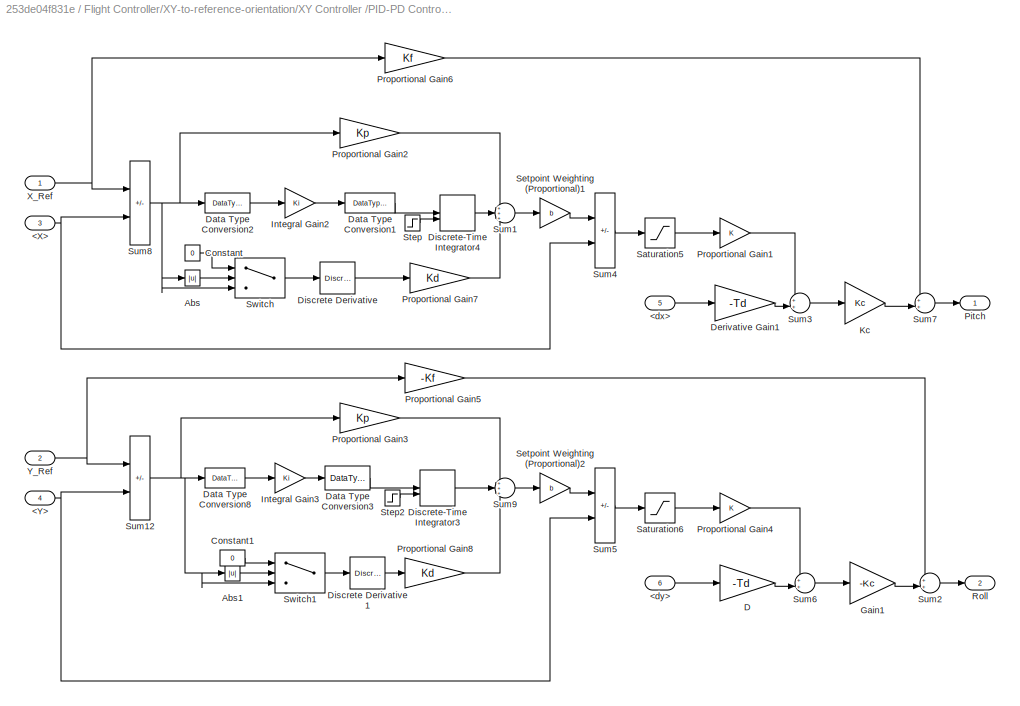
BLOCK [SubSystem] Flight Controller/XY-to-reference-orientation/XY Controller /PID-PD Controller 
  VariantControl = PID-PD
BLOCK [Inport] Flight Controller/XY-to-reference-orientation/XY Controller /PID-PD Controller /<X>
  Port = 3
BLOCK [Inport] Flight Controller/XY-to-reference-orientation/XY Controller /PID-PD Controller /<Y>
  Port = 4
BLOCK [Inport] Flight Controller/XY-to-reference-orientation/XY Controller /PID-PD Controller /<dx>
  Port = 5
BLOCK [Inport] Flight Controller/XY-to-reference-orientation/XY Controller /PID-PD Controller /<dy>
  Port = 6
BLOCK [Abs] Flight Controller/XY-to-reference-orientation/XY Controller /PID-PD Controller /Abs
  SaturateOnIntegerOverflow = off
BLOCK [Abs] Flight Controller/XY-to-reference-orientation/XY Controller /PID-PD Controller /Abs1
  SaturateOnIntegerOverflow = off
BLOCK [Constant] Flight Controller/XY-to-reference-orientation/XY Controller /PID-PD Controller /Constant
  SampleTime = -1
  Value = 0
BLOCK [Constant] Flight Controller/XY-to-reference-orientation/XY Controller /PID-PD Controller /Constant1
  SampleTime = -1
  Value = 0
BLOCK [Gain] Flight Controller/XY-to-reference-orientation/XY Controller /PID-PD Controller /D
  Gain = -Td
BLOCK [DataTypeConversion] Flight Controller/XY-to-reference-orientation/XY Controller /PID-PD Controller /Data Type Conversion1
  OutDataTypeStr = double
  RndMeth = Floor
  SaturateOnIntegerOverflow = off
BLOCK [DataTypeConversion] Flight Controller/XY-to-reference-orientation/XY Controller /PID-PD Controller /Data Type Conversion2
  OutDataTypeStr = single
  RndMeth = Floor
  SaturateOnIntegerOverflow = off
BLOCK [DataTypeConversion] Flight Controller/XY-to-reference-orientation/XY Controller /PID-PD Controller /Data Type Conversion3
  OutDataTypeStr = double
  RndMeth = Floor
  SaturateOnIntegerOverflow = off
BLOCK [DataTypeConversion] Flight Controller/XY-to-reference-orientation/XY Controller /PID-PD Controller /Data Type Conversion8
  OutDataTypeStr = single
  RndMeth = Floor
  SaturateOnIntegerOverflow = off
BLOCK [Gain] Flight Controller/XY-to-reference-orientation/XY Controller /PID-PD Controller /Derivative Gain1
  DisableCoverage = on
  Gain = -Td
BLOCK [Reference] Flight Controller/XY-to-reference-orientation/XY Controller /PID-PD Controller /Discrete Derivative  REF=simulink/Discrete/Discrete Derivative
  SourceBlock = simulink/Discrete/Discrete Derivative
  SourceType = Discrete Derivative
BLOCK [Reference] Flight Controller/XY-to-reference-orientation/XY Controller /PID-PD Controller /Discrete Derivative1  REF=simulink/Discrete/Discrete Derivative
  SourceBlock = simulink/Discrete/Discrete Derivative
  SourceType = Discrete Derivative
BLOCK [DiscreteIntegrator] Flight Controller/XY-to-reference-orientation/XY Controller /PID-PD Controller /Discrete-Time Integrator3
  ExternalReset = falling
  ICPrevOutput = DiscIntNeverNeededParam
  ICPrevScaledInput = DiscIntNeverNeededParam
  InitialConditionSetting = Auto
  SampleTime = Ts
BLOCK [DiscreteIntegrator] Flight Controller/XY-to-reference-orientation/XY Controller /PID-PD Controller /Discrete-Time Integrator4
  ExternalReset = falling
  ICPrevOutput = DiscIntNeverNeededParam
  ICPrevScaledInput = DiscIntNeverNeededParam
  InitialConditionSetting = Auto
  SampleTime = Ts
BLOCK [Gain] Flight Controller/XY-to-reference-orientation/XY Controller /PID-PD Controller /Gain1
  Gain = -Kc
BLOCK [Gain] Flight Controller/XY-to-reference-orientation/XY Controller /PID-PD Controller /Integral Gain2
  DisableCoverage = on
  Gain = Ki
BLOCK [Gain] Flight Controller/XY-to-reference-orientation/XY Controller /PID-PD Controller /Integral Gain3
  DisableCoverage = on
  Gain = Ki
BLOCK [Gain] Flight Controller/XY-to-reference-orientation/XY Controller /PID-PD Controller /Kc
  Gain = Kc
BLOCK [Outport] Flight Controller/XY-to-reference-orientation/XY Controller /PID-PD Controller /Pitch
  OutDataTypeStr = single
  VectorParamsAs1DForOutWhenUnconnected = off
BLOCK [Gain] Flight Controller/XY-to-reference-orientation/XY Controller /PID-PD Controller /Proportional Gain1
BLOCK [Gain] Flight Controller/XY-to-reference-orientation/XY Controller /PID-PD Controller /Proportional Gain2
  Gain = Kp
BLOCK [Gain] Flight Controller/XY-to-reference-orientation/XY Controller /PID-PD Controller /Proportional Gain3
  Gain = Kp
BLOCK [Gain] Flight Controller/XY-to-reference-orientation/XY Controller /PID-PD Controller /Proportional Gain4
BLOCK [Gain] Flight Controller/XY-to-reference-orientation/XY Controller /PID-PD Controller /Proportional Gain5
  Gain = -Kf
BLOCK [Gain] Flight Controller/XY-to-reference-orientation/XY Controller /PID-PD Controller /Proportional Gain6
  Gain = Kf
BLOCK [Gain] Flight Controller/XY-to-reference-orientation/XY Controller /PID-PD Controller /Proportional Gain7
  Gain = Kd
BLOCK [Gain] Flight Controller/XY-to-reference-orientation/XY Controller /PID-PD Controller /Proportional Gain8
  Gain = Kd
BLOCK [Outport] Flight Controller/XY-to-reference-orientation/XY Controller /PID-PD Controller /Roll
  OutDataTypeStr = single
  Port = 2
  VectorParamsAs1DForOutWhenUnconnected = off
BLOCK [Saturate] Flight Controller/XY-to-reference-orientation/XY Controller /PID-PD Controller /Saturation5
  LowerLimit = -3
  OutDataTypeStr = single
  UpperLimit = 3
BLOCK [Saturate] Flight Controller/XY-to-reference-orientation/XY Controller /PID-PD Controller /Saturation6
  LowerLimit = -3
  OutDataTypeStr = single
  UpperLimit = 3
BLOCK [Gain] Flight Controller/XY-to-reference-orientation/XY Controller /PID-PD Controller /Setpoint Weighting (Proportional)1
  DisableCoverage = on
  Gain = b
BLOCK [Gain] Flight Controller/XY-to-reference-orientation/XY Controller /PID-PD Controller /Setpoint Weighting (Proportional)2
  DisableCoverage = on
  Gain = b
BLOCK [Step] Flight Controller/XY-to-reference-orientation/XY Controller /PID-PD Controller /Step
  After = 0
  Before = 1
  SampleTime = Ts
  Time = 49
BLOCK [Step] Flight Controller/XY-to-reference-orientation/XY Controller /PID-PD Controller /Step2
  After = 0
  Before = 1
  SampleTime = Ts
  Time = 49
BLOCK [Sum] Flight Controller/XY-to-reference-orientation/XY Controller /PID-PD Controller /Sum1
  Inputs = +++
BLOCK [Sum] Flight Controller/XY-to-reference-orientation/XY Controller /PID-PD Controller /Sum12
  DisableCoverage = on
  IconShape = rectangular
  Inputs = +-
BLOCK [Sum] Flight Controller/XY-to-reference-orientation/XY Controller /PID-PD Controller /Sum2
  Inputs = ++|
BLOCK [Sum] Flight Controller/XY-to-reference-orientation/XY Controller /PID-PD Controller /Sum3
  Inputs = ++|
BLOCK [Sum] Flight Controller/XY-to-reference-orientation/XY Controller /PID-PD Controller /Sum4
  DisableCoverage = on
  IconShape = rectangular
  Inputs = +-
BLOCK [Sum] Flight Controller/XY-to-reference-orientation/XY Controller /PID-PD Controller /Sum5
  DisableCoverage = on
  IconShape = rectangular
  Inputs = +-
BLOCK [Sum] Flight Controller/XY-to-reference-orientation/XY Controller /PID-PD Controller /Sum6
  Inputs = ++|
BLOCK [Sum] Flight Controller/XY-to-reference-orientation/XY Controller /PID-PD Controller /Sum7
  Inputs = ++|
BLOCK [Sum] Flight Controller/XY-to-reference-orientation/XY Controller /PID-PD Controller /Sum8
  DisableCoverage = on
  IconShape = rectangular
  Inputs = +-
BLOCK [Sum] Flight Controller/XY-to-reference-orientation/XY Controller /PID-PD Controller /Sum9
  Inputs = +++
BLOCK [Switch] Flight Controller/XY-to-reference-orientation/XY Controller /PID-PD Controller /Switch
  InputSameDT = off
  SaturateOnIntegerOverflow = off
  Threshold = 0.1
BLOCK [Switch] Flight Controller/XY-to-reference-orientation/XY Controller /PID-PD Controller /Switch1
  InputSameDT = off
  SaturateOnIntegerOverflow = off
  Threshold = 0.1
BLOCK [Inport] Flight Controller/XY-to-reference-orientation/XY Controller /PID-PD Controller /X_Ref
BLOCK [Inport] Flight Controller/XY-to-reference-orientation/XY Controller /PID-PD Controller /Y_Ref
  Port = 2
BLOCK [Inport] Flight Controller/XY-to-reference-orientation/XY Controller /X_Ref
BLOCK [Inport] Flight Controller/XY-to-reference-orientation/XY Controller /Y_Ref
  Port = 2
BLOCK [Outport] Flight Controller/XY-to-reference-orientation/pitch_roll_cmd
  VectorParamsAs1DForOutWhenUnconnected = off
BLOCK [Inport] Flight Controller/XY-to-reference-orientation/posXY
BLOCK [Inport] Flight Controller/XY-to-reference-orientation/states_estim
  Port = 2
BLOCK [Inport] Flight Controller/XY-to-reference-orientation/yaw
  NameLocation = top
  Port = 3
BLOCK [SubSystem] Flight Controller/Yaw
  LabelModeActiveChoice = PD
  Variant = on
  VariantControl = Yaw
  VariantControlMode = label
BLOCK [SubSystem] Flight Controller/Yaw/Yaw PD Controller
  VariantControl = PD
BLOCK [BusSelector] Flight Controller/Yaw/Yaw PD Controller/Bus Selector5
  OutputSignals = yaw,r
BLOCK [Gain] Flight Controller/Yaw/Yaw PD Controller/D_yaw
  Gain = 0.3*0.004
BLOCK [Gain] Flight Controller/Yaw/Yaw PD Controller/P_yaw
  Gain = 0.004
  OutDataTypeStr = single
  ParamDataTypeStr = single
BLOCK [Sum] Flight Controller/Yaw/Yaw PD Controller/Sum1
  AccumDataTypeStr = single
  Inputs = +-|
  OutDataTypeStr = single
  SaturateOnIntegerOverflow = on
BLOCK [Sum] Flight Controller/Yaw/Yaw PD Controller/Sum2
  Inputs = |+-
BLOCK [Inport] Flight Controller/Yaw/Yaw PD Controller/states_estim
  Port = 2
BLOCK [Outport] Flight Controller/Yaw/Yaw PD Controller/tau_yaw
  Port = 2
  VectorParamsAs1DForOutWhenUnconnected = off
BLOCK [Outport] Flight Controller/Yaw/Yaw PD Controller/yaw
  VectorParamsAs1DForOutWhenUnconnected = off
BLOCK [Inport] Flight Controller/Yaw/Yaw PD Controller/yaw_ref
BLOCK [SubSystem] Flight Controller/Yaw/Yaw RL Agent
  VariantControl = RL
BLOCK [DataTypeConversion] Flight Controller/Yaw/Yaw RL Agent/Data Type Conversion
  OutDataTypeStr = single
  RndMeth = Floor
  SaturateOnIntegerOverflow = off
BLOCK [Reference] Flight Controller/Yaw/Yaw RL Agent/RL Agent  REF=rllib/RL Agent
  SourceBlock = rllib/RL Agent
  SourceType = RL Agent
BLOCK [SubSystem] Flight Controller/Yaw/Yaw RL Agent/observations
  PortSchema = {"entries":[{"content":{"sides":[{"content":{"connectorIds":["In1"]},"type":"ConnectorPlacement.EquallySpacedRectSide","uuid":"a3b67cbb-e476-4be2-be7c-7eea36da381b"},{"content":{"connectorIds":["Out1"],"side":"RIGHT"},"type":"ConnectorPlacement.EquallySpacedRectSide","uuid":"9cf72cce-49c7-479d-af00-70c0385ccd4a"},{"content":{"connectorIds":["Out2"],"side":"TOP"},"type":"ConnectorPlacement.EquallyS...<+246ch>
BLOCK [BusSelector] Flight Controller/Yaw/Yaw RL Agent/observations/Bus Selector
  OutputSignals = X,Y,Z,yaw,pitch,roll,dx,dy,dz,p,q,r
BLOCK [BusSelector] Flight Controller/Yaw/Yaw RL Agent/observations/Bus Selector1
  OutputSignals = yaw
BLOCK [Inport] Flight Controller/Yaw/Yaw RL Agent/observations/In1
BLOCK [Mux] Flight Controller/Yaw/Yaw RL Agent/observations/Mux
  DisplayOption = bar
  Inputs = 12
BLOCK [Outport] Flight Controller/Yaw/Yaw RL Agent/observations/Out1
BLOCK [Outport] Flight Controller/Yaw/Yaw RL Agent/observations/yaw
  Port = 2
BLOCK [SubSystem] Flight Controller/Yaw/Yaw RL Agent/rewardFunction
BLOCK [Abs] Flight Controller/Yaw/Yaw RL Agent/rewardFunction/Abs5
  SaturateOnIntegerOverflow = off
BLOCK [BusSelector] Flight Controller/Yaw/Yaw RL Agent/rewardFunction/Bus Selector2
  OutputSignals = yaw
BLOCK [Reference] Flight Controller/Yaw/Yaw RL Agent/rewardFunction/Compare To Constant1  REF=simulink/Logic and Bit
Operations/Compare
To Constant
  SourceBlock = simulink/Logic and Bit\nOperations/Compare\nTo Constant
  SourceType = Compare To Constant
BLOCK [Reference] Flight Controller/Yaw/Yaw RL Agent/rewardFunction/Compare To Constant2  REF=simulink/Logic and Bit
Operations/Compare
To Constant
  SourceBlock = simulink/Logic and Bit\nOperations/Compare\nTo Constant
  SourceType = Compare To Constant
BLOCK [DigitalClock] Flight Controller/Yaw/Yaw RL Agent/rewardFunction/Digital Clock
  SampleTime = Ts
BLOCK [Gain] Flight Controller/Yaw/Yaw RL Agent/rewardFunction/Gain1
  Gain = -1
BLOCK [Gain] Flight Controller/Yaw/Yaw RL Agent/rewardFunction/Gain4
  Gain = 1/(2*pi)
BLOCK [Logic] Flight Controller/Yaw/Yaw RL Agent/rewardFunction/OR
  AllPortsSameDT = off
  OutDataTypeStr = boolean
BLOCK [Outport] Flight Controller/Yaw/Yaw RL Agent/rewardFunction/Out1
BLOCK [Outport] Flight Controller/Yaw/Yaw RL Agent/rewardFunction/Out2
  Port = 2
BLOCK [Scope] Flight Controller/Yaw/Yaw RL Agent/rewardFunction/Scope
  Commented = on
  Floating = off
  NumInputPorts = 2
  ScopeSpecificationString = Simulink.scopes.TimeScopeBlockCfg('CurrentConfiguration', extmgr.ConfigurationSet(extmgr.Configuration('Core','General UI',true),extmgr.Configuration('Core','Source UI',true),extmgr.Configuration('Sources','WiredSimulink',true,'DataLoggingVariableName','ScopeData1'),extmgr.Configuration('Visuals','Time Domain',true,'SerializedDisplays',{struct('MinYLimReal','-1.77429','MaxYLimReal','1.09618','YLab...<+1387ch>
BLOCK [Sum] Flight Controller/Yaw/Yaw RL Agent/rewardFunction/Sum3
  Inputs = |+-
BLOCK [Inport] Flight Controller/Yaw/Yaw RL Agent/rewardFunction/states_estim
  Port = 2
BLOCK [Inport] Flight Controller/Yaw/Yaw RL Agent/rewardFunction/yaw_ref
BLOCK [Inport] Flight Controller/Yaw/Yaw RL Agent/states_estim
  Port = 2
BLOCK [Outport] Flight Controller/Yaw/Yaw RL Agent/tau_yaw
  Port = 2
  VectorParamsAs1DForOutWhenUnconnected = off
BLOCK [Outport] Flight Controller/Yaw/Yaw RL Agent/yaw
  VectorParamsAs1DForOutWhenUnconnected = off
BLOCK [Inport] Flight Controller/Yaw/Yaw RL Agent/yaw_ref
BLOCK [Inport] Flight Controller/Yaw/states_estim
  Port = 2
BLOCK [Outport] Flight Controller/Yaw/tau_yaw
  Port = 2
BLOCK [Outport] Flight Controller/Yaw/yaw
BLOCK [Inport] Flight Controller/Yaw/yaw_ref
BLOCK [SubSystem] Flight Controller/gravity feedforward//equilibrium thrust
BLOCK [BusSelector] Flight Controller/gravity feedforward//equilibrium thrust/Bus Selector6
  OutputSignals = Z,dz
BLOCK [Inport] Flight Controller/gravity feedforward//equilibrium thrust/PosZ
  Port = 2
BLOCK [Saturate] Flight Controller/gravity feedforward//equilibrium thrust/SaturationThrust
  LowerLimit = -4*Controller.totalThrustMaxRelative*Controller.motorsThrustPerMotorMax
  OutDataTypeStr = single
  UpperLimit = 4*Controller.totalThrustMaxRelative*Controller.motorsThrustPerMotorMax
BLOCK [Sum] Flight Controller/gravity feedforward//equilibrium thrust/Sum4
  AccumDataTypeStr = single
  Inputs = ++|
  OutDataTypeStr = single
  SaturateOnIntegerOverflow = on
BLOCK [Switch] Flight Controller/gravity feedforward//equilibrium thrust/TakeoffOrControl_Switch
  Criteria = u2 > Threshold
  InputSameDT = off
  SaturateOnIntegerOverflow = off
BLOCK [SubSystem] Flight Controller/gravity feedforward//equilibrium thrust/Z Controller Subsystem
  LabelModeActiveChoice = PD
  Variant = on
  VariantControl = Variant2
  VariantControlMode = label
BLOCK [Outport] Flight Controller/gravity feedforward//equilibrium thrust/Z Controller Subsystem/ Altitude
  VectorParamsAs1DForOutWhenUnconnected = off
BLOCK [Inport] Flight Controller/gravity feedforward//equilibrium thrust/Z Controller Subsystem/<Z> 
  Port = 2
BLOCK [Inport] Flight Controller/gravity feedforward//equilibrium thrust/Z Controller Subsystem/<dz> 
  Port = 3
BLOCK [SubSystem] Flight Controller/gravity feedforward//equilibrium thrust/Z Controller Subsystem/PD Controller 
  VariantControl = PD
BLOCK [Inport] Flight Controller/gravity feedforward//equilibrium thrust/Z Controller Subsystem/PD Controller /<Z>
  Port = 2
BLOCK [Inport] Flight Controller/gravity feedforward//equilibrium thrust/Z Controller Subsystem/PD Controller /<dz>
  Port = 3
BLOCK [Outport] Flight Controller/gravity feedforward//equilibrium thrust/Z Controller Subsystem/PD Controller /Altitude
  VectorParamsAs1DForOutWhenUnconnected = off
BLOCK [Gain] Flight Controller/gravity feedforward//equilibrium thrust/Z Controller Subsystem/PD Controller /Derivative Gain
  DisableCoverage = on
  Gain = -Td
BLOCK [Gain] Flight Controller/gravity feedforward//equilibrium thrust/Z Controller Subsystem/PD Controller /Kc
  Gain = Kc
BLOCK [Inport] Flight Controller/gravity feedforward//equilibrium thrust/Z Controller Subsystem/PD Controller /PosZ
BLOCK [Gain] Flight Controller/gravity feedforward//equilibrium thrust/Z Controller Subsystem/PD Controller /Proportional Gain
BLOCK [Gain] Flight Controller/gravity feedforward//equilibrium thrust/Z Controller Subsystem/PD Controller /Setpoint Weighting (Proportional)
  DisableCoverage = on
  Gain = b
BLOCK [Sum] Flight Controller/gravity feedforward//equilibrium thrust/Z Controller Subsystem/PD Controller /Sum3
  Inputs = |++
BLOCK [Sum] Flight Controller/gravity feedforward//equilibrium thrust/Z Controller Subsystem/PD Controller /Sum4
  DisableCoverage = on
  IconShape = rectangular
  Inputs = +-
BLOCK [SubSystem] Flight Controller/gravity feedforward//equilibrium thrust/Z Controller Subsystem/PI-PD Controller 
  VariantControl = PI-PD
BLOCK [Inport] Flight Controller/gravity feedforward//equilibrium thrust/Z Controller Subsystem/PI-PD Controller /<Z>
  Port = 2
BLOCK [Inport] Flight Controller/gravity feedforward//equilibrium thrust/Z Controller Subsystem/PI-PD Controller /<dz>
  Port = 3
BLOCK [Outport] Flight Controller/gravity feedforward//equilibrium thrust/Z Controller Subsystem/PI-PD Controller /Altitude
  VectorParamsAs1DForOutWhenUnconnected = off
BLOCK [DataTypeConversion] Flight Controller/gravity feedforward//equilibrium thrust/Z Controller Subsystem/PI-PD Controller /Data Type Conversion1
  OutDataTypeStr = double
  RndMeth = Floor
  SaturateOnIntegerOverflow = off
BLOCK [DataTypeConversion] Flight Controller/gravity feedforward//equilibrium thrust/Z Controller Subsystem/PI-PD Controller /Data Type Conversion2
  OutDataTypeStr = single
  RndMeth = Floor
  SaturateOnIntegerOverflow = off
BLOCK [Gain] Flight Controller/gravity feedforward//equilibrium thrust/Z Controller Subsystem/PI-PD Controller /Derivative Gain2
  DisableCoverage = on
  Gain = -Td
BLOCK [DiscreteIntegrator] Flight Controller/gravity feedforward//equilibrium thrust/Z Controller Subsystem/PI-PD Controller /Discrete-Time Integrator1
  ExternalReset = falling
  ICPrevOutput = DiscIntNeverNeededParam
  ICPrevScaledInput = DiscIntNeverNeededParam
  InitialConditionSetting = Auto
  SampleTime = Ts
BLOCK [Gain] Flight Controller/gravity feedforward//equilibrium thrust/Z Controller Subsystem/PI-PD Controller /Integral Gain3
  DisableCoverage = on
  Gain = 1/Ki
BLOCK [Gain] Flight Controller/gravity feedforward//equilibrium thrust/Z Controller Subsystem/PI-PD Controller /Kc1
  Gain = Kc
BLOCK [Inport] Flight Controller/gravity feedforward//equilibrium thrust/Z Controller Subsystem/PI-PD Controller /PosZ
BLOCK [Gain] Flight Controller/gravity feedforward//equilibrium thrust/Z Controller Subsystem/PI-PD Controller /Proportional Gain2
BLOCK [Gain] Flight Controller/gravity feedforward//equilibrium thrust/Z Controller Subsystem/PI-PD Controller /Proportional Gain3
  Gain = Kp
BLOCK [Gain] Flight Controller/gravity feedforward//equilibrium thrust/Z Controller Subsystem/PI-PD Controller /Setpoint Weighting (Proportional)2
  DisableCoverage = on
  Gain = b
BLOCK [Step] Flight Controller/gravity feedforward//equilibrium thrust/Z Controller Subsystem/PI-PD Controller /Step1
  After = 0
  Before = 1
  SampleTime = Ts
  Time = 49
BLOCK [Sum] Flight Controller/gravity feedforward//equilibrium thrust/Z Controller Subsystem/PI-PD Controller /Sum1
  Inputs = ++|
BLOCK [Sum] Flight Controller/gravity feedforward//equilibrium thrust/Z Controller Subsystem/PI-PD Controller /Sum2
  DisableCoverage = on
  IconShape = rectangular
  Inputs = +-
BLOCK [Sum] Flight Controller/gravity feedforward//equilibrium thrust/Z Controller Subsystem/PI-PD Controller /Sum6
  Inputs = |++
BLOCK [Sum] Flight Controller/gravity feedforward//equilibrium thrust/Z Controller Subsystem/PI-PD Controller /Sum7
  DisableCoverage = on
  IconShape = rectangular
  Inputs = +-
BLOCK [Sum] Flight Controller/gravity feedforward//equilibrium thrust/Z Controller Subsystem/PI-PD Controller /Sum9
  DisableCoverage = on
  IconShape = rectangular
  Inputs = +-
BLOCK [Inport] Flight Controller/gravity feedforward//equilibrium thrust/Z Controller Subsystem/PosZ 
BLOCK [Outport] Flight Controller/gravity feedforward//equilibrium thrust/altitude_cmd
  VectorParamsAs1DForOutWhenUnconnected = off
BLOCK [Inport] Flight Controller/gravity feedforward//equilibrium thrust/states_estim
BLOCK [Inport] Flight Controller/gravity feedforward//equilibrium thrust/takeoff_flag
  Port = 3
BLOCK [Gain] Flight Controller/gravity feedforward//equilibrium thrust/takeoff_gain
  Gain = Controller.takeoffGain
  OutDataTypeStr = single
  ParamDataTypeStr = single
  SaturateOnIntegerOverflow = on
BLOCK [Constant] Flight Controller/gravity feedforward//equilibrium thrust/w0
  OutDataTypeStr = single
  SampleTime = Ts
  Value = -g*Vehicle.Airframe.mass
BLOCK [Outport] Flight Controller/motors_refout
  VectorParamsAs1DForOutWhenUnconnected = off
BLOCK [Outport] Flight Controller/pose_refout
  Port = 2
  VectorParamsAs1DForOutWhenUnconnected = off
BLOCK [Inport] Flight Controller/states_estim
  Port = 2
BLOCK [InportShadow] Flight Controller/states_estim1
  Port = 2
BLOCK [InportShadow] Flight Controller/states_estim2
  Port = 2
BLOCK [InportShadow] Flight Controller/states_estim3
  Port = 2
BLOCK [SubSystem] Flight Controller/thrustsToMotorCommands
BLOCK [Gain] Flight Controller/thrustsToMotorCommands/MotorDirections
  Gain = [1 -1 1 -1]
BLOCK [Saturate] Flight Controller/thrustsToMotorCommands/Saturation5
  LowerLimit = Vehicle.Motor.minLimit
  UpperLimit = Vehicle.Motor.maxLimit
BLOCK [Gain] Flight Controller/thrustsToMotorCommands/ThrustToMotorCommand
  Gain = -Vehicle.Motor.thrustToMotorCommand
BLOCK [Outport] Flight Controller/thrustsToMotorCommands/motors_cmdout
  VectorParamsAs1DForOutWhenUnconnected = off
BLOCK [Inport] Flight Controller/thrustsToMotorCommands/thrusts_refin
BLOCK [Inport] ReferenceValueServerBus
  BusOutputAsStruct = on
  OutDataTypeStr = Bus: CommandBus
BLOCK [Outport] motors_refout
  VectorParamsAs1DForOutWhenUnconnected = off
BLOCK [Outport] pose_refout
  Port = 2
  VectorParamsAs1DForOutWhenUnconnected = off
BLOCK [Inport] states_estim
  BusOutputAsStruct = on
  OutDataTypeStr = Bus: statesEstim_t
  Port = 2
ANNOTATION (root): <copyright redacted>
ANNOTATION (root): Flight Controller
ANNOTATION Flight Controller/Attitude/Roll & Pitch PID Controller: ROLL & PITCH ATTITUDE PID CONTROLLER
ANNOTATION Flight Controller/Attitude/Roll & Pitch RL Agent: RL BASED ROLL & PITCH ATTITUDE CONTROLLER
ANNOTATION Flight Controller/Attitude/Roll & Pitch RL Based PID Controller: ATTITUDE CONTROL
ANNOTATION Flight Controller/Attitude/Roll & Pitch RL Based PID Controller: Inner loop PID controls angular velocity
ANNOTATION Flight Controller/Attitude/Roll & Pitch RL Based PID Controller: Outer Proportional loop controls the pitch and roll angle
ANNOTATION Flight Controller/Yaw/Yaw PD Controller: YAW ATTITUDE PD CONTROLLER
ANNOTATION Flight Controller/Yaw/Yaw RL Agent: RL BASED YAW ATTITUDE CONTROLLER
ANNOTATION Flight Controller/gravity feedforward//equilibrium thrust: ALTITUDE
LINE Flight Controller/Attitude/Roll & Pitch PID Controller/Add:1 -> Flight Controller/Attitude/Roll & Pitch PID Controller/Discrete-Time Integrator:1
LINE Flight Controller/Attitude/Roll & Pitch PID Controller/Bus Selector3:1 -> Flight Controller/Attitude/Roll & Pitch PID Controller/Mux:1
LINE Flight Controller/Attitude/Roll & Pitch PID Controller/Bus Selector3:2 -> Flight Controller/Attitude/Roll & Pitch PID Controller/Mux:2
LINE Flight Controller/Attitude/Roll & Pitch PID Controller/Bus Selector4:1 -> Flight Controller/Attitude/Roll & Pitch PID Controller/Mux1:1
LINE Flight Controller/Attitude/Roll & Pitch PID Controller/Bus Selector4:2 -> Flight Controller/Attitude/Roll & Pitch PID Controller/Mux1:2
LINE Flight Controller/Attitude/Roll & Pitch PID Controller/D_pr:1 -> Flight Controller/Attitude/Roll & Pitch PID Controller/Sum16:3
LINE Flight Controller/Attitude/Roll & Pitch PID Controller/Delay:1 -> Flight Controller/Attitude/Roll & Pitch PID Controller/antiWU_Gain:1
LINE Flight Controller/Attitude/Roll & Pitch PID Controller/Demux:1 -> Flight Controller/Attitude/Roll & Pitch PID Controller/tau_pitch:1
LINE Flight Controller/Attitude/Roll & Pitch PID Controller/Demux:2 -> Flight Controller/Attitude/Roll & Pitch PID Controller/tau_roll:1
NET Flight Controller/Attitude/Roll & Pitch PID Controller/Discrete-Time Integrator:1 -> Flight Controller/Attitude/Roll & Pitch PID Controller/Delay:1, Flight Controller/Attitude/Roll & Pitch PID Controller/I_pr:1
LINE Flight Controller/Attitude/Roll & Pitch PID Controller/I_pr:1 -> Flight Controller/Attitude/Roll & Pitch PID Controller/Sum16:2
LINE Flight Controller/Attitude/Roll & Pitch PID Controller/Mux1:1 -> Flight Controller/Attitude/Roll & Pitch PID Controller/D_pr:1
LINE Flight Controller/Attitude/Roll & Pitch PID Controller/Mux:1 -> Flight Controller/Attitude/Roll & Pitch PID Controller/Sum19:2
LINE Flight Controller/Attitude/Roll & Pitch PID Controller/P_pr:1 -> Flight Controller/Attitude/Roll & Pitch PID Controller/Sum16:1
LINE Flight Controller/Attitude/Roll & Pitch PID Controller/Sum16:1 -> Flight Controller/Attitude/Roll & Pitch PID Controller/Demux:1
NET Flight Controller/Attitude/Roll & Pitch PID Controller/Sum19:1 -> Flight Controller/Attitude/Roll & Pitch PID Controller/Add:1, Flight Controller/Attitude/Roll & Pitch PID Controller/P_pr:1
LINE Flight Controller/Attitude/Roll & Pitch PID Controller/antiWU_Gain:1 -> Flight Controller/Attitude/Roll & Pitch PID Controller/Add:2
LINE Flight Controller/Attitude/Roll & Pitch PID Controller/refAttitude:1 -> Flight Controller/Attitude/Roll & Pitch PID Controller/Sum19:1
NET Flight Controller/Attitude/Roll & Pitch PID Controller/states_estim:1 -> Flight Controller/Attitude/Roll & Pitch PID Controller/Bus Selector3:1, Flight Controller/Attitude/Roll & Pitch PID Controller/Bus Selector4:1
LINE Flight Controller/Attitude/Roll & Pitch RL Agent/Data Type Conversion:1 -> Flight Controller/Attitude/Roll & Pitch RL Agent/Demux:1
LINE Flight Controller/Attitude/Roll & Pitch RL Agent/Demux:1 -> Flight Controller/Attitude/Roll & Pitch RL Agent/Saturation:1
LINE Flight Controller/Attitude/Roll & Pitch RL Agent/Demux:2 -> Flight Controller/Attitude/Roll & Pitch RL Agent/Saturation1:1
NET Flight Controller/Attitude/Roll & Pitch RL Agent/RL Agent:1 -> Flight Controller/Attitude/Roll & Pitch RL Agent/Data Type Conversion:1, Flight Controller/Attitude/Roll & Pitch RL Agent/Unit Delay:1
LINE Flight Controller/Attitude/Roll & Pitch RL Agent/RL Agent:2 -> Flight Controller/Attitude/Roll & Pitch RL Agent/Display:1
LINE Flight Controller/Attitude/Roll & Pitch RL Agent/Saturation1:1 -> Flight Controller/Attitude/Roll & Pitch RL Agent/tau_roll:1
LINE Flight Controller/Attitude/Roll & Pitch RL Agent/Saturation:1 -> Flight Controller/Attitude/Roll & Pitch RL Agent/tau_pitch:1
LINE Flight Controller/Attitude/Roll & Pitch RL Agent/Unit Delay:1 -> Flight Controller/Attitude/Roll & Pitch RL Agent/rewardFunction:3
LINE Flight Controller/Attitude/Roll & Pitch RL Agent/observations/Bus Selector1:1 -> Flight Controller/Attitude/Roll & Pitch RL Agent/observations/Sum:2
LINE Flight Controller/Attitude/Roll & Pitch RL Agent/observations/Bus Selector1:2 -> Flight Controller/Attitude/Roll & Pitch RL Agent/observations/Sum1:2
LINE Flight Controller/Attitude/Roll & Pitch RL Agent/observations/Bus Selector:1 -> Flight Controller/Attitude/Roll & Pitch RL Agent/observations/Mux:5
LINE Flight Controller/Attitude/Roll & Pitch RL Agent/observations/Bus Selector:2 -> Flight Controller/Attitude/Roll & Pitch RL Agent/observations/Mux:6
LINE Flight Controller/Attitude/Roll & Pitch RL Agent/observations/Demux:1 -> Flight Controller/Attitude/Roll & Pitch RL Agent/observations/Sum:1
LINE Flight Controller/Attitude/Roll & Pitch RL Agent/observations/Demux:2 -> Flight Controller/Attitude/Roll & Pitch RL Agent/observations/Sum1:1
LINE Flight Controller/Attitude/Roll & Pitch RL Agent/observations/Discrete-Time Integrator1:1 -> Flight Controller/Attitude/Roll & Pitch RL Agent/observations/Mux:4
LINE Flight Controller/Attitude/Roll & Pitch RL Agent/observations/Discrete-Time Integrator:1 -> Flight Controller/Attitude/Roll & Pitch RL Agent/observations/Mux:2
LINE Flight Controller/Attitude/Roll & Pitch RL Agent/observations/Mux:1 -> Flight Controller/Attitude/Roll & Pitch RL Agent/observations/Out1:1
NET Flight Controller/Attitude/Roll & Pitch RL Agent/observations/Sum1:1 -> Flight Controller/Attitude/Roll & Pitch RL Agent/observations/Discrete-Time Integrator1:1, Flight Controller/Attitude/Roll & Pitch RL Agent/observations/Mux:3
NET Flight Controller/Attitude/Roll & Pitch RL Agent/observations/Sum:1 -> Flight Controller/Attitude/Roll & Pitch RL Agent/observations/Discrete-Time Integrator:1, Flight Controller/Attitude/Roll & Pitch RL Agent/observations/Mux:1
LINE Flight Controller/Attitude/Roll & Pitch RL Agent/observations/refAttitude:1 -> Flight Controller/Attitude/Roll & Pitch RL Agent/observations/Demux:1
NET Flight Controller/Attitude/Roll & Pitch RL Agent/observations/states_estim:1 -> Flight Controller/Attitude/Roll & Pitch RL Agent/observations/Bus Selector1:1, Flight Controller/Attitude/Roll & Pitch RL Agent/observations/Bus Selector:1
LINE Flight Controller/Attitude/Roll & Pitch RL Agent/observations:1 -> Flight Controller/Attitude/Roll & Pitch RL Agent/RL Agent:1
NET Flight Controller/Attitude/Roll & Pitch RL Agent/refAttitude:1 -> Flight Controller/Attitude/Roll & Pitch RL Agent/observations:1, Flight Controller/Attitude/Roll & Pitch RL Agent/rewardFunction:1
NET Flight Controller/Attitude/Roll & Pitch RL Agent/rewardFunction/Abs1:1 -> Flight Controller/Attitude/Roll & Pitch RL Agent/rewardFunction/Gain4:1, Flight Controller/Attitude/Roll & Pitch RL Agent/rewardFunction/Moving Average1:1
NET Flight Controller/Attitude/Roll & Pitch RL Agent/rewardFunction/Abs2:1 -> Flight Controller/Attitude/Roll & Pitch RL Agent/rewardFunction/Gain3:1, Flight Controller/Attitude/Roll & Pitch RL Agent/rewardFunction/Moving Average:1
LINE Flight Controller/Attitude/Roll & Pitch RL Agent/rewardFunction/Abs3:1 -> Flight Controller/Attitude/Roll & Pitch RL Agent/rewardFunction/Gain5:1
LINE Flight Controller/Attitude/Roll & Pitch RL Agent/rewardFunction/Abs4:1 -> Flight Controller/Attitude/Roll & Pitch RL Agent/rewardFunction/Sum:1
LINE Flight Controller/Attitude/Roll & Pitch RL Agent/rewardFunction/Abs5:1 -> Flight Controller/Attitude/Roll & Pitch RL Agent/rewardFunction/Sum:2
LINE Flight Controller/Attitude/Roll & Pitch RL Agent/rewardFunction/Abs:1 -> Flight Controller/Attitude/Roll & Pitch RL Agent/rewardFunction/Gain2:1
LINE Flight Controller/Attitude/Roll & Pitch RL Agent/rewardFunction/Bus Selector1:1 -> Flight Controller/Attitude/Roll & Pitch RL Agent/rewardFunction/Abs:1
LINE Flight Controller/Attitude/Roll & Pitch RL Agent/rewardFunction/Bus Selector1:2 -> Flight Controller/Attitude/Roll & Pitch RL Agent/rewardFunction/Abs3:1
LINE Flight Controller/Attitude/Roll & Pitch RL Agent/rewardFunction/Bus Selector2:1 -> Flight Controller/Attitude/Roll & Pitch RL Agent/rewardFunction/Sum2:2
LINE Flight Controller/Attitude/Roll & Pitch RL Agent/rewardFunction/Bus Selector2:2 -> Flight Controller/Attitude/Roll & Pitch RL Agent/rewardFunction/Sum3:2
LINE Flight Controller/Attitude/Roll & Pitch RL Agent/rewardFunction/Compare To Constant1:1 -> Flight Controller/Attitude/Roll & Pitch RL Agent/rewardFunction/OR:2
LINE Flight Controller/Attitude/Roll & Pitch RL Agent/rewardFunction/Compare To Constant2:1 -> Flight Controller/Attitude/Roll & Pitch RL Agent/rewardFunction/OR:3
LINE Flight Controller/Attitude/Roll & Pitch RL Agent/rewardFunction/Compare To Constant:1 -> Flight Controller/Attitude/Roll & Pitch RL Agent/rewardFunction/OR:1
LINE Flight Controller/Attitude/Roll & Pitch RL Agent/rewardFunction/Constant1:1 -> Flight Controller/Attitude/Roll & Pitch RL Agent/rewardFunction/Out2:1
LINE Flight Controller/Attitude/Roll & Pitch RL Agent/rewardFunction/Constant:1 -> Flight Controller/Attitude/Roll & Pitch RL Agent/rewardFunction/Divide:1
LINE Flight Controller/Attitude/Roll & Pitch RL Agent/rewardFunction/Demux1:1 -> Flight Controller/Attitude/Roll & Pitch RL Agent/rewardFunction/Sum2:1
LINE Flight Controller/Attitude/Roll & Pitch RL Agent/rewardFunction/Demux1:2 -> Flight Controller/Attitude/Roll & Pitch RL Agent/rewardFunction/Sum3:1
LINE Flight Controller/Attitude/Roll & Pitch RL Agent/rewardFunction/Demux2:1 -> Flight Controller/Attitude/Roll & Pitch RL Agent/rewardFunction/Abs4:1
LINE Flight Controller/Attitude/Roll & Pitch RL Agent/rewardFunction/Demux2:2 -> Flight Controller/Attitude/Roll & Pitch RL Agent/rewardFunction/Abs5:1
LINE Flight Controller/Attitude/Roll & Pitch RL Agent/rewardFunction/Digital Clock:1 -> Flight Controller/Attitude/Roll & Pitch RL Agent/rewardFunction/Compare To Constant2:1
LINE Flight Controller/Attitude/Roll & Pitch RL Agent/rewardFunction/Divide:1 -> Flight Controller/Attitude/Roll & Pitch RL Agent/rewardFunction/Out1:1
LINE Flight Controller/Attitude/Roll & Pitch RL Agent/rewardFunction/Gain1:1 -> Flight Controller/Attitude/Roll & Pitch RL Agent/rewardFunction/Math Function4:1
LINE Flight Controller/Attitude/Roll & Pitch RL Agent/rewardFunction/Gain3:1 -> Flight Controller/Attitude/Roll & Pitch RL Agent/rewardFunction/Sum4:1
LINE Flight Controller/Attitude/Roll & Pitch RL Agent/rewardFunction/Gain4:1 -> Flight Controller/Attitude/Roll & Pitch RL Agent/rewardFunction/Sum4:2
NET Flight Controller/Attitude/Roll & Pitch RL Agent/rewardFunction/In1:1 -> Flight Controller/Attitude/Roll & Pitch RL Agent/rewardFunction/Bus Selector1:1, Flight Controller/Attitude/Roll & Pitch RL Agent/rewardFunction/Bus Selector2:1
LINE Flight Controller/Attitude/Roll & Pitch RL Agent/rewardFunction/In2:1 -> Flight Controller/Attitude/Roll & Pitch RL Agent/rewardFunction/Demux1:1
LINE Flight Controller/Attitude/Roll & Pitch RL Agent/rewardFunction/In3:1 -> Flight Controller/Attitude/Roll & Pitch RL Agent/rewardFunction/Demux2:1
LINE Flight Controller/Attitude/Roll & Pitch RL Agent/rewardFunction/MATLAB Function1:1 -> Flight Controller/Attitude/Roll & Pitch RL Agent/rewardFunction/Abs1:1
LINE Flight Controller/Attitude/Roll & Pitch RL Agent/rewardFunction/MATLAB Function:1 -> Flight Controller/Attitude/Roll & Pitch RL Agent/rewardFunction/Abs2:1
LINE Flight Controller/Attitude/Roll & Pitch RL Agent/rewardFunction/Math Function4:1 -> Flight Controller/Attitude/Roll & Pitch RL Agent/rewardFunction/Divide:2
LINE Flight Controller/Attitude/Roll & Pitch RL Agent/rewardFunction/Moving Average1:1 -> Flight Controller/Attitude/Roll & Pitch RL Agent/rewardFunction/Compare To Constant1:1
LINE Flight Controller/Attitude/Roll & Pitch RL Agent/rewardFunction/Moving Average:1 -> Flight Controller/Attitude/Roll & Pitch RL Agent/rewardFunction/Compare To Constant:1
LINE Flight Controller/Attitude/Roll & Pitch RL Agent/rewardFunction/OR:1 -> Flight Controller/Attitude/Roll & Pitch RL Agent/rewardFunction/Terminator:1
LINE Flight Controller/Attitude/Roll & Pitch RL Agent/rewardFunction/Sum2:1 -> Flight Controller/Attitude/Roll & Pitch RL Agent/rewardFunction/MATLAB Function:1
LINE Flight Controller/Attitude/Roll & Pitch RL Agent/rewardFunction/Sum3:1 -> Flight Controller/Attitude/Roll & Pitch RL Agent/rewardFunction/MATLAB Function1:1
LINE Flight Controller/Attitude/Roll & Pitch RL Agent/rewardFunction/Sum4:1 -> Flight Controller/Attitude/Roll & Pitch RL Agent/rewardFunction/Gain1:1
LINE Flight Controller/Attitude/Roll & Pitch RL Agent/rewardFunction/Sum:1 -> Flight Controller/Attitude/Roll & Pitch RL Agent/rewardFunction/Gain6:1
LINE Flight Controller/Attitude/Roll & Pitch RL Agent/rewardFunction2/Abs3:1 -> Flight Controller/Attitude/Roll & Pitch RL Agent/rewardFunction2/Gain5:1
LINE Flight Controller/Attitude/Roll & Pitch RL Agent/rewardFunction2/Abs4:1 -> Flight Controller/Attitude/Roll & Pitch RL Agent/rewardFunction2/Sum:1
LINE Flight Controller/Attitude/Roll & Pitch RL Agent/rewardFunction2/Abs5:1 -> Flight Controller/Attitude/Roll & Pitch RL Agent/rewardFunction2/Sum:2
LINE Flight Controller/Attitude/Roll & Pitch RL Agent/rewardFunction2/Abs:1 -> Flight Controller/Attitude/Roll & Pitch RL Agent/rewardFunction2/Gain2:1
LINE Flight Controller/Attitude/Roll & Pitch RL Agent/rewardFunction2/Bus Selector1:1 -> Flight Controller/Attitude/Roll & Pitch RL Agent/rewardFunction2/Abs:1
LINE Flight Controller/Attitude/Roll & Pitch RL Agent/rewardFunction2/Bus Selector1:2 -> Flight Controller/Attitude/Roll & Pitch RL Agent/rewardFunction2/Abs3:1
LINE Flight Controller/Attitude/Roll & Pitch RL Agent/rewardFunction2/Bus Selector2:1 -> Flight Controller/Attitude/Roll & Pitch RL Agent/rewardFunction2/Sum2:2
LINE Flight Controller/Attitude/Roll & Pitch RL Agent/rewardFunction2/Bus Selector2:2 -> Flight Controller/Attitude/Roll & Pitch RL Agent/rewardFunction2/Sum3:2
LINE Flight Controller/Attitude/Roll & Pitch RL Agent/rewardFunction2/Compare To Constant1:1 -> Flight Controller/Attitude/Roll & Pitch RL Agent/rewardFunction2/OR:2
LINE Flight Controller/Attitude/Roll & Pitch RL Agent/rewardFunction2/Compare To Constant2:1 -> Flight Controller/Attitude/Roll & Pitch RL Agent/rewardFunction2/OR:3
LINE Flight Controller/Attitude/Roll & Pitch RL Agent/rewardFunction2/Compare To Constant:1 -> Flight Controller/Attitude/Roll & Pitch RL Agent/rewardFunction2/OR:1
LINE Flight Controller/Attitude/Roll & Pitch RL Agent/rewardFunction2/Constant1:1 -> Flight Controller/Attitude/Roll & Pitch RL Agent/rewardFunction2/Out2:1
LINE Flight Controller/Attitude/Roll & Pitch RL Agent/rewardFunction2/Demux1:1 -> Flight Controller/Attitude/Roll & Pitch RL Agent/rewardFunction2/Sum2:1
LINE Flight Controller/Attitude/Roll & Pitch RL Agent/rewardFunction2/Demux1:2 -> Flight Controller/Attitude/Roll & Pitch RL Agent/rewardFunction2/Sum3:1
LINE Flight Controller/Attitude/Roll & Pitch RL Agent/rewardFunction2/Demux2:1 -> Flight Controller/Attitude/Roll & Pitch RL Agent/rewardFunction2/Abs4:1
LINE Flight Controller/Attitude/Roll & Pitch RL Agent/rewardFunction2/Demux2:2 -> Flight Controller/Attitude/Roll & Pitch RL Agent/rewardFunction2/Abs5:1
LINE Flight Controller/Attitude/Roll & Pitch RL Agent/rewardFunction2/Digital Clock:1 -> Flight Controller/Attitude/Roll & Pitch RL Agent/rewardFunction2/Compare To Constant2:1
LINE Flight Controller/Attitude/Roll & Pitch RL Agent/rewardFunction2/Gain1:1 -> Flight Controller/Attitude/Roll & Pitch RL Agent/rewardFunction2/Out1:1
LINE Flight Controller/Attitude/Roll & Pitch RL Agent/rewardFunction2/Gain3:1 -> Flight Controller/Attitude/Roll & Pitch RL Agent/rewardFunction2/Sum4:1
LINE Flight Controller/Attitude/Roll & Pitch RL Agent/rewardFunction2/Gain4:1 -> Flight Controller/Attitude/Roll & Pitch RL Agent/rewardFunction2/Sum4:2
NET Flight Controller/Attitude/Roll & Pitch RL Agent/rewardFunction2/In1:1 -> Flight Controller/Attitude/Roll & Pitch RL Agent/rewardFunction2/Bus Selector1:1, Flight Controller/Attitude/Roll & Pitch RL Agent/rewardFunction2/Bus Selector2:1
LINE Flight Controller/Attitude/Roll & Pitch RL Agent/rewardFunction2/In2:1 -> Flight Controller/Attitude/Roll & Pitch RL Agent/rewardFunction2/Demux1:1
LINE Flight Controller/Attitude/Roll & Pitch RL Agent/rewardFunction2/In3:1 -> Flight Controller/Attitude/Roll & Pitch RL Agent/rewardFunction2/Demux2:1
NET Flight Controller/Attitude/Roll & Pitch RL Agent/rewardFunction2/Math Function1:1 -> Flight Controller/Attitude/Roll & Pitch RL Agent/rewardFunction2/Gain4:1, Flight Controller/Attitude/Roll & Pitch RL Agent/rewardFunction2/Moving Average1:1
NET Flight Controller/Attitude/Roll & Pitch RL Agent/rewardFunction2/Math Function:1 -> Flight Controller/Attitude/Roll & Pitch RL Agent/rewardFunction2/Gain3:1, Flight Controller/Attitude/Roll & Pitch RL Agent/rewardFunction2/Moving Average:1
LINE Flight Controller/Attitude/Roll & Pitch RL Agent/rewardFunction2/Moving Average1:1 -> Flight Controller/Attitude/Roll & Pitch RL Agent/rewardFunction2/Compare To Constant1:1
LINE Flight Controller/Attitude/Roll & Pitch RL Agent/rewardFunction2/Moving Average:1 -> Flight Controller/Attitude/Roll & Pitch RL Agent/rewardFunction2/Compare To Constant:1
LINE Flight Controller/Attitude/Roll & Pitch RL Agent/rewardFunction2/OR:1 -> Flight Controller/Attitude/Roll & Pitch RL Agent/rewardFunction2/Terminator:1
LINE Flight Controller/Attitude/Roll & Pitch RL Agent/rewardFunction2/Sum2:1 -> Flight Controller/Attitude/Roll & Pitch RL Agent/rewardFunction2/Math Function:1
LINE Flight Controller/Attitude/Roll & Pitch RL Agent/rewardFunction2/Sum3:1 -> Flight Controller/Attitude/Roll & Pitch RL Agent/rewardFunction2/Math Function1:1
LINE Flight Controller/Attitude/Roll & Pitch RL Agent/rewardFunction2/Sum4:1 -> Flight Controller/Attitude/Roll & Pitch RL Agent/rewardFunction2/Gain1:1
LINE Flight Controller/Attitude/Roll & Pitch RL Agent/rewardFunction2/Sum:1 -> Flight Controller/Attitude/Roll & Pitch RL Agent/rewardFunction2/Gain6:1
LINE Flight Controller/Attitude/Roll & Pitch RL Agent/rewardFunction:1 -> Flight Controller/Attitude/Roll & Pitch RL Agent/RL Agent:2
LINE Flight Controller/Attitude/Roll & Pitch RL Agent/rewardFunction:2 -> Flight Controller/Attitude/Roll & Pitch RL Agent/RL Agent:3
NET Flight Controller/Attitude/Roll & Pitch RL Agent/states_estim:1 -> Flight Controller/Attitude/Roll & Pitch RL Agent/observations:2, Flight Controller/Attitude/Roll & Pitch RL Agent/rewardFunction:2
LINE Flight Controller/Attitude/Roll & Pitch RL Based PID Controller/Angle control loop:1 -> Flight Controller/Attitude/Roll & Pitch RL Based PID Controller/Sum1:1
LINE Flight Controller/Attitude/Roll & Pitch RL Based PID Controller/Angular velocity control loop:1 -> Flight Controller/Attitude/Roll & Pitch RL Based PID Controller/Demux1:1
LINE Flight Controller/Attitude/Roll & Pitch RL Based PID Controller/Bus Selector1:1 -> Flight Controller/Attitude/Roll & Pitch RL Based PID Controller/Mux2:1
LINE Flight Controller/Attitude/Roll & Pitch RL Based PID Controller/Bus Selector1:2 -> Flight Controller/Attitude/Roll & Pitch RL Based PID Controller/Mux2:2
LINE Flight Controller/Attitude/Roll & Pitch RL Based PID Controller/Bus Selector3:1 -> Flight Controller/Attitude/Roll & Pitch RL Based PID Controller/Mux:1
LINE Flight Controller/Attitude/Roll & Pitch RL Based PID Controller/Bus Selector3:2 -> Flight Controller/Attitude/Roll & Pitch RL Based PID Controller/Mux:2
LINE Flight Controller/Attitude/Roll & Pitch RL Based PID Controller/Demux1:1 -> Flight Controller/Attitude/Roll & Pitch RL Based PID Controller/tau_pitch:1
LINE Flight Controller/Attitude/Roll & Pitch RL Based PID Controller/Demux1:2 -> Flight Controller/Attitude/Roll & Pitch RL Based PID Controller/tau_roll:1
LINE Flight Controller/Attitude/Roll & Pitch RL Based PID Controller/Mux2:1 -> Flight Controller/Attitude/Roll & Pitch RL Based PID Controller/Sum1:2
LINE Flight Controller/Attitude/Roll & Pitch RL Based PID Controller/Mux:1 -> Flight Controller/Attitude/Roll & Pitch RL Based PID Controller/Sum19:2
LINE Flight Controller/Attitude/Roll & Pitch RL Based PID Controller/Sum19:1 -> Flight Controller/Attitude/Roll & Pitch RL Based PID Controller/Angle control loop:1
LINE Flight Controller/Attitude/Roll & Pitch RL Based PID Controller/Sum1:1 -> Flight Controller/Attitude/Roll & Pitch RL Based PID Controller/Angular velocity control loop:1
LINE Flight Controller/Attitude/Roll & Pitch RL Based PID Controller/refAttitude:1 -> Flight Controller/Attitude/Roll & Pitch RL Based PID Controller/Sum19:1
NET Flight Controller/Attitude/Roll & Pitch RL Based PID Controller/states_estim:1 -> Flight Controller/Attitude/Roll & Pitch RL Based PID Controller/Bus Selector1:1, Flight Controller/Attitude/Roll & Pitch RL Based PID Controller/Bus Selector3:1
NET Flight Controller/Attitude:1 -> Flight Controller/ControlMixer:1, Flight Controller/Scope:1
NET Flight Controller/Attitude:2 -> Flight Controller/ControlMixer:2, Flight Controller/Scope:2
LINE Flight Controller/ControlMixer/Mux2:1 -> Flight Controller/ControlMixer/Product:2
LINE Flight Controller/ControlMixer/Product:1 -> Flight Controller/ControlMixer/thrusts_refout:1
LINE Flight Controller/ControlMixer/TorqueTotalThrustToThrustPerMotor:1 -> Flight Controller/ControlMixer/Product:1
LINE Flight Controller/ControlMixer/tau_pitch:1 -> Flight Controller/ControlMixer/Mux2:3
LINE Flight Controller/ControlMixer/tau_roll:1 -> Flight Controller/ControlMixer/Mux2:4
LINE Flight Controller/ControlMixer/tau_yaw:1 -> Flight Controller/ControlMixer/Mux2:2
LINE Flight Controller/ControlMixer/totalThrust:1 -> Flight Controller/ControlMixer/Mux2:1
LINE Flight Controller/ControlMixer:1 -> Flight Controller/thrustsToMotorCommands:1
LINE Flight Controller/In Bus Element1:1 -> Flight Controller/Switch_refAtt:2
LINE Flight Controller/In Bus Element2:1 -> Flight Controller/Selector3:1
LINE Flight Controller/In Bus Element3:1 -> Flight Controller/gravity feedforward//equilibrium thrust:3
LINE Flight Controller/In Bus Element4:1 -> Flight Controller/Mux2:1
LINE Flight Controller/In Bus Element5:1 -> Flight Controller/Selector:1
LINE Flight Controller/In Bus Element6:1 -> Flight Controller/Selector2:1
LINE Flight Controller/In Bus Element7:1 -> Flight Controller/Mux2:2
LINE Flight Controller/In Bus Element:1 -> Flight Controller/Selector1:1
LINE Flight Controller/Mux2:1 -> Flight Controller/pose_refout:1
LINE Flight Controller/Selector1:1 -> Flight Controller/XY-to-reference-orientation:1
LINE Flight Controller/Selector2:1 -> Flight Controller/Switch_refAtt:3
LINE Flight Controller/Selector3:1 -> Flight Controller/Yaw:1
LINE Flight Controller/Selector:1 -> Flight Controller/gravity feedforward//equilibrium thrust:2
NET Flight Controller/Switch_refAtt:1 -> Flight Controller/Attitude:1, Flight Controller/Mux2:3
LINE Flight Controller/XY-to-reference-orientation/Bus Selector3:1 -> Flight Controller/XY-to-reference-orientation/Mux2:1
LINE Flight Controller/XY-to-reference-orientation/Bus Selector3:2 -> Flight Controller/XY-to-reference-orientation/Mux2:2
LINE Flight Controller/XY-to-reference-orientation/Bus Selector3:3 -> Flight Controller/XY-to-reference-orientation/XY Controller :5
LINE Flight Controller/XY-to-reference-orientation/Bus Selector3:4 -> Flight Controller/XY-to-reference-orientation/XY Controller :6
LINE Flight Controller/XY-to-reference-orientation/Demux1:1 -> Flight Controller/XY-to-reference-orientation/XY Controller :3
LINE Flight Controller/XY-to-reference-orientation/Demux1:2 -> Flight Controller/XY-to-reference-orientation/XY Controller :4
LINE Flight Controller/XY-to-reference-orientation/Demux2:1 -> Flight Controller/XY-to-reference-orientation/XY Controller :1
LINE Flight Controller/XY-to-reference-orientation/Demux2:2 -> Flight Controller/XY-to-reference-orientation/XY Controller :2
LINE Flight Controller/XY-to-reference-orientation/Mux2:1 -> Flight Controller/XY-to-reference-orientation/Product1:2
LINE Flight Controller/XY-to-reference-orientation/Mux6:1 -> Flight Controller/XY-to-reference-orientation/pitch_roll_cmd:1
LINE Flight Controller/XY-to-reference-orientation/Product1:1 -> Flight Controller/XY-to-reference-orientation/Demux1:1
LINE Flight Controller/XY-to-reference-orientation/Product3:1 -> Flight Controller/XY-to-reference-orientation/Demux2:1
LINE Flight Controller/XY-to-reference-orientation/Subsystem/Gain2:1 -> Flight Controller/XY-to-reference-orientation/Subsystem/Vector Concatenate2:2
LINE Flight Controller/XY-to-reference-orientation/Subsystem/Matrix Concatenate1:1 -> Flight Controller/XY-to-reference-orientation/Subsystem/Out1:1
NET Flight Controller/XY-to-reference-orientation/Subsystem/Trigonometric Function1:1 -> Flight Controller/XY-to-reference-orientation/Subsystem/Gain2:1, Flight Controller/XY-to-reference-orientation/Subsystem/Vector Concatenate3:1
NET Flight Controller/XY-to-reference-orientation/Subsystem/Trigonometric Function1:2 -> Flight Controller/XY-to-reference-orientation/Subsystem/Vector Concatenate2:1, Flight Controller/XY-to-reference-orientation/Subsystem/Vector Concatenate3:2
LINE Flight Controller/XY-to-reference-orientation/Subsystem/Vector Concatenate2:1 -> Flight Controller/XY-to-reference-orientation/Subsystem/Matrix Concatenate1:1
LINE Flight Controller/XY-to-reference-orientation/Subsystem/Vector Concatenate3:1 -> Flight Controller/XY-to-reference-orientation/Subsystem/Matrix Concatenate1:2
LINE Flight Controller/XY-to-reference-orientation/Subsystem/yaw:1 -> Flight Controller/XY-to-reference-orientation/Subsystem/Trigonometric Function1:1
NET Flight Controller/XY-to-reference-orientation/Subsystem:1 -> Flight Controller/XY-to-reference-orientation/Product1:1, Flight Controller/XY-to-reference-orientation/Product3:1
LINE Flight Controller/XY-to-reference-orientation/XY Controller :1 -> Flight Controller/XY-to-reference-orientation/Mux6:1
LINE Flight Controller/XY-to-reference-orientation/XY Controller :2 -> Flight Controller/XY-to-reference-orientation/Mux6:2
LINE Flight Controller/XY-to-reference-orientation/posXY:1 -> Flight Controller/XY-to-reference-orientation/Product3:2
LINE Flight Controller/XY-to-reference-orientation/states_estim:1 -> Flight Controller/XY-to-reference-orientation/Bus Selector3:1
LINE Flight Controller/XY-to-reference-orientation/yaw:1 -> Flight Controller/XY-to-reference-orientation/Subsystem:1
LINE Flight Controller/XY-to-reference-orientation:1 -> Flight Controller/Switch_refAtt:1
NET Flight Controller/Yaw/Yaw PD Controller/Bus Selector5:1 -> Flight Controller/Yaw/Yaw PD Controller/Sum1:2, Flight Controller/Yaw/Yaw PD Controller/yaw:1
LINE Flight Controller/Yaw/Yaw PD Controller/Bus Selector5:2 -> Flight Controller/Yaw/Yaw PD Controller/D_yaw:1
LINE Flight Controller/Yaw/Yaw PD Controller/D_yaw:1 -> Flight Controller/Yaw/Yaw PD Controller/Sum2:2
LINE Flight Controller/Yaw/Yaw PD Controller/P_yaw:1 -> Flight Controller/Yaw/Yaw PD Controller/Sum2:1
LINE Flight Controller/Yaw/Yaw PD Controller/Sum1:1 -> Flight Controller/Yaw/Yaw PD Controller/P_yaw:1
LINE Flight Controller/Yaw/Yaw PD Controller/Sum2:1 -> Flight Controller/Yaw/Yaw PD Controller/tau_yaw:1
LINE Flight Controller/Yaw/Yaw PD Controller/states_estim:1 -> Flight Controller/Yaw/Yaw PD Controller/Bus Selector5:1
LINE Flight Controller/Yaw/Yaw PD Controller/yaw_ref:1 -> Flight Controller/Yaw/Yaw PD Controller/Sum1:1
LINE Flight Controller/Yaw/Yaw RL Agent/Data Type Conversion:1 -> Flight Controller/Yaw/Yaw RL Agent/tau_yaw:1
LINE Flight Controller/Yaw/Yaw RL Agent/RL Agent:1 -> Flight Controller/Yaw/Yaw RL Agent/Data Type Conversion:1
LINE Flight Controller/Yaw/Yaw RL Agent/observations/Bus Selector1:1 -> Flight Controller/Yaw/Yaw RL Agent/observations/yaw:1
LINE Flight Controller/Yaw/Yaw RL Agent/observations/Bus Selector:1 -> Flight Controller/Yaw/Yaw RL Agent/observations/Mux:1
LINE Flight Controller/Yaw/Yaw RL Agent/observations/Bus Selector:10 -> Flight Controller/Yaw/Yaw RL Agent/observations/Mux:10
LINE Flight Controller/Yaw/Yaw RL Agent/observations/Bus Selector:11 -> Flight Controller/Yaw/Yaw RL Agent/observations/Mux:11
LINE Flight Controller/Yaw/Yaw RL Agent/observations/Bus Selector:12 -> Flight Controller/Yaw/Yaw RL Agent/observations/Mux:12
LINE Flight Controller/Yaw/Yaw RL Agent/observations/Bus Selector:2 -> Flight Controller/Yaw/Yaw RL Agent/observations/Mux:2
LINE Flight Controller/Yaw/Yaw RL Agent/observations/Bus Selector:3 -> Flight Controller/Yaw/Yaw RL Agent/observations/Mux:3
LINE Flight Controller/Yaw/Yaw RL Agent/observations/Bus Selector:4 -> Flight Controller/Yaw/Yaw RL Agent/observations/Mux:4
LINE Flight Controller/Yaw/Yaw RL Agent/observations/Bus Selector:5 -> Flight Controller/Yaw/Yaw RL Agent/observations/Mux:5
LINE Flight Controller/Yaw/Yaw RL Agent/observations/Bus Selector:6 -> Flight Controller/Yaw/Yaw RL Agent/observations/Mux:6
LINE Flight Controller/Yaw/Yaw RL Agent/observations/Bus Selector:7 -> Flight Controller/Yaw/Yaw RL Agent/observations/Mux:7
LINE Flight Controller/Yaw/Yaw RL Agent/observations/Bus Selector:8 -> Flight Controller/Yaw/Yaw RL Agent/observations/Mux:8
LINE Flight Controller/Yaw/Yaw RL Agent/observations/Bus Selector:9 -> Flight Controller/Yaw/Yaw RL Agent/observations/Mux:9
NET Flight Controller/Yaw/Yaw RL Agent/observations/In1:1 -> Flight Controller/Yaw/Yaw RL Agent/observations/Bus Selector1:1, Flight Controller/Yaw/Yaw RL Agent/observations/Bus Selector:1
LINE Flight Controller/Yaw/Yaw RL Agent/observations/Mux:1 -> Flight Controller/Yaw/Yaw RL Agent/observations/Out1:1
LINE Flight Controller/Yaw/Yaw RL Agent/observations:1 -> Flight Controller/Yaw/Yaw RL Agent/RL Agent:1
LINE Flight Controller/Yaw/Yaw RL Agent/observations:2 -> Flight Controller/Yaw/Yaw RL Agent/yaw:1
NET Flight Controller/Yaw/Yaw RL Agent/rewardFunction/Abs5:1 -> Flight Controller/Yaw/Yaw RL Agent/rewardFunction/Compare To Constant1:1, Flight Controller/Yaw/Yaw RL Agent/rewardFunction/Gain4:1
NET Flight Controller/Yaw/Yaw RL Agent/rewardFunction/Bus Selector2:1 -> Flight Controller/Yaw/Yaw RL Agent/rewardFunction/Scope:2, Flight Controller/Yaw/Yaw RL Agent/rewardFunction/Sum3:2
LINE Flight Controller/Yaw/Yaw RL Agent/rewardFunction/Compare To Constant1:1 -> Flight Controller/Yaw/Yaw RL Agent/rewardFunction/OR:1
LINE Flight Controller/Yaw/Yaw RL Agent/rewardFunction/Compare To Constant2:1 -> Flight Controller/Yaw/Yaw RL Agent/rewardFunction/OR:2
LINE Flight Controller/Yaw/Yaw RL Agent/rewardFunction/Digital Clock:1 -> Flight Controller/Yaw/Yaw RL Agent/rewardFunction/Compare To Constant2:1
LINE Flight Controller/Yaw/Yaw RL Agent/rewardFunction/Gain1:1 -> Flight Controller/Yaw/Yaw RL Agent/rewardFunction/Out1:1
LINE Flight Controller/Yaw/Yaw RL Agent/rewardFunction/Gain4:1 -> Flight Controller/Yaw/Yaw RL Agent/rewardFunction/Gain1:1
LINE Flight Controller/Yaw/Yaw RL Agent/rewardFunction/OR:1 -> Flight Controller/Yaw/Yaw RL Agent/rewardFunction/Out2:1
LINE Flight Controller/Yaw/Yaw RL Agent/rewardFunction/Sum3:1 -> Flight Controller/Yaw/Yaw RL Agent/rewardFunction/Abs5:1
LINE Flight Controller/Yaw/Yaw RL Agent/rewardFunction/states_estim:1 -> Flight Controller/Yaw/Yaw RL Agent/rewardFunction/Bus Selector2:1
NET Flight Controller/Yaw/Yaw RL Agent/rewardFunction/yaw_ref:1 -> Flight Controller/Yaw/Yaw RL Agent/rewardFunction/Scope:1, Flight Controller/Yaw/Yaw RL Agent/rewardFunction/Sum3:1
LINE Flight Controller/Yaw/Yaw RL Agent/rewardFunction:1 -> Flight Controller/Yaw/Yaw RL Agent/RL Agent:2
LINE Flight Controller/Yaw/Yaw RL Agent/rewardFunction:2 -> Flight Controller/Yaw/Yaw RL Agent/RL Agent:3
NET Flight Controller/Yaw/Yaw RL Agent/states_estim:1 -> Flight Controller/Yaw/Yaw RL Agent/observations:1, Flight Controller/Yaw/Yaw RL Agent/rewardFunction:2
LINE Flight Controller/Yaw/Yaw RL Agent/yaw_ref:1 -> Flight Controller/Yaw/Yaw RL Agent/rewardFunction:1
LINE Flight Controller/Yaw:1 -> Flight Controller/XY-to-reference-orientation:3
LINE Flight Controller/Yaw:2 -> Flight Controller/ControlMixer:3
LINE Flight Controller/gravity feedforward//equilibrium thrust/Bus Selector6:1 -> Flight Controller/gravity feedforward//equilibrium thrust/Z Controller Subsystem:2
LINE Flight Controller/gravity feedforward//equilibrium thrust/Bus Selector6:2 -> Flight Controller/gravity feedforward//equilibrium thrust/Z Controller Subsystem:3
LINE Flight Controller/gravity feedforward//equilibrium thrust/PosZ:1 -> Flight Controller/gravity feedforward//equilibrium thrust/Z Controller Subsystem:1
LINE Flight Controller/gravity feedforward//equilibrium thrust/SaturationThrust:1 -> Flight Controller/gravity feedforward//equilibrium thrust/altitude_cmd:1
LINE Flight Controller/gravity feedforward//equilibrium thrust/Sum4:1 -> Flight Controller/gravity feedforward//equilibrium thrust/SaturationThrust:1
LINE Flight Controller/gravity feedforward//equilibrium thrust/TakeoffOrControl_Switch:1 -> Flight Controller/gravity feedforward//equilibrium thrust/Sum4:2
LINE Flight Controller/gravity feedforward//equilibrium thrust/Z Controller Subsystem:1 -> Flight Controller/gravity feedforward//equilibrium thrust/TakeoffOrControl_Switch:3
LINE Flight Controller/gravity feedforward//equilibrium thrust/states_estim:1 -> Flight Controller/gravity feedforward//equilibrium thrust/Bus Selector6:1
LINE Flight Controller/gravity feedforward//equilibrium thrust/takeoff_flag:1 -> Flight Controller/gravity feedforward//equilibrium thrust/TakeoffOrControl_Switch:2
LINE Flight Controller/gravity feedforward//equilibrium thrust/takeoff_gain:1 -> Flight Controller/gravity feedforward//equilibrium thrust/TakeoffOrControl_Switch:1
NET Flight Controller/gravity feedforward//equilibrium thrust/w0:1 -> Flight Controller/gravity feedforward//equilibrium thrust/Sum4:1, Flight Controller/gravity feedforward//equilibrium thrust/takeoff_gain:1
LINE Flight Controller/gravity feedforward//equilibrium thrust:1 -> Flight Controller/ControlMixer:4
LINE Flight Controller/states_estim1:1 -> Flight Controller/gravity feedforward//equilibrium thrust:1
LINE Flight Controller/states_estim2:1 -> Flight Controller/Attitude:2
LINE Flight Controller/states_estim3:1 -> Flight Controller/XY-to-reference-orientation:2
LINE Flight Controller/states_estim:1 -> Flight Controller/Yaw:2
LINE Flight Controller/thrustsToMotorCommands/MotorDirections:1 -> Flight Controller/thrustsToMotorCommands/motors_cmdout:1
LINE Flight Controller/thrustsToMotorCommands/Saturation5:1 -> Flight Controller/thrustsToMotorCommands/MotorDirections:1
LINE Flight Controller/thrustsToMotorCommands/ThrustToMotorCommand:1 -> Flight Controller/thrustsToMotorCommands/Saturation5:1
LINE Flight Controller/thrustsToMotorCommands/thrusts_refin:1 -> Flight Controller/thrustsToMotorCommands/ThrustToMotorCommand:1
LINE Flight Controller/thrustsToMotorCommands:1 -> Flight Controller/motors_refout:1
LINE Flight Controller:1 -> motors_refout:1
LINE Flight Controller:2 -> pose_refout:1
LINE ReferenceValueServerBus:1 -> Flight Controller:1
LINE states_estim:1 -> Flight Controller:2
note: NET lines group one-source signal fan-out (src -> all destinations, sorted); 1:1 wires keep LINE
CHART Flight Controller/Attitude/Roll & Pitch RL Agent/rewardFunction/MATLAB Function1 states=1 transitions=1
  STATE_LABEL 'eML_blk_kernel()'
  STATE_LABEL 'SCRIPT:\nfunction y = WrapPi(u)\n\nu2 = mod(u,2*pi);\n\nif u2 > pi\n    y = u2 - 2*pi;\nelseif u2 < -pi\n    y = u2 + 2*pi;\nelse\n    y = u2;\nend\n\n\n'
CHART Flight Controller/Attitude/Roll & Pitch RL Agent/rewardFunction/MATLAB Function states=1 transitions=1
  STATE_LABEL 'eML_blk_kernel()'
  STATE_LABEL 'SCRIPT:\nfunction y = WrapPi(u)\n\nu2 = mod(u,2*pi);\n\nif u2 > pi\n    y = u2 - 2*pi;\nelseif u2 < -pi\n    y = u2 + 2*pi;\nelse\n    y = u2;\nend\n\n\n'
CHART  states=0 transitions=0
CHART  states=0 transitions=0
